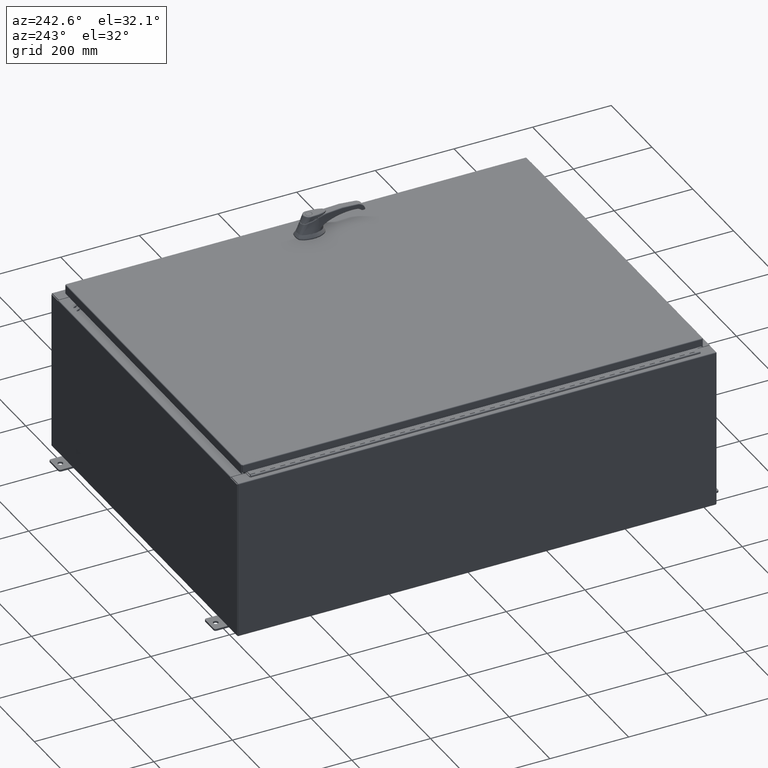
[diagram: clean part render]
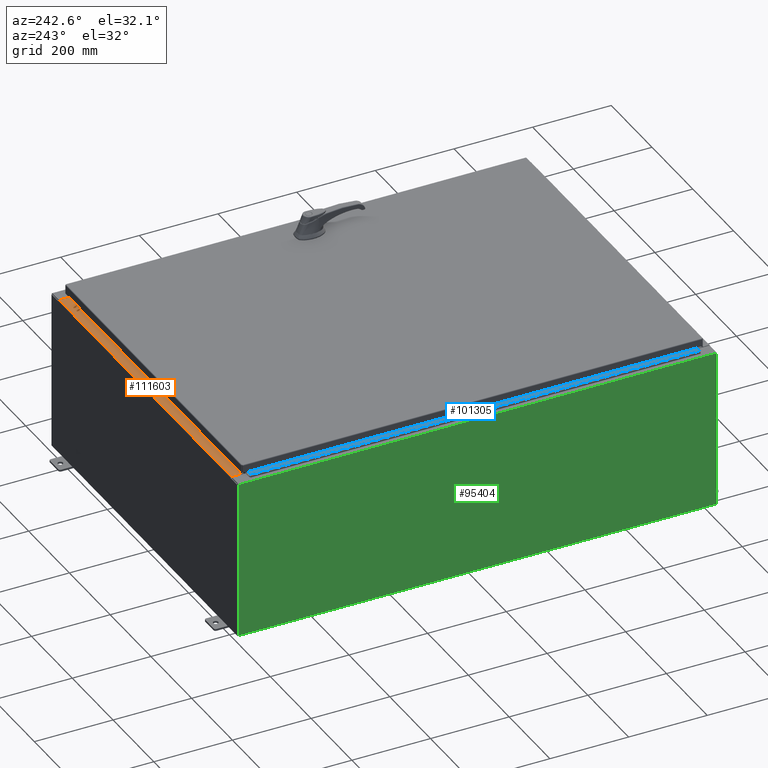
[diagram: same view with three faces highlighted in distinct colors, each labeled with its STEP entity id]
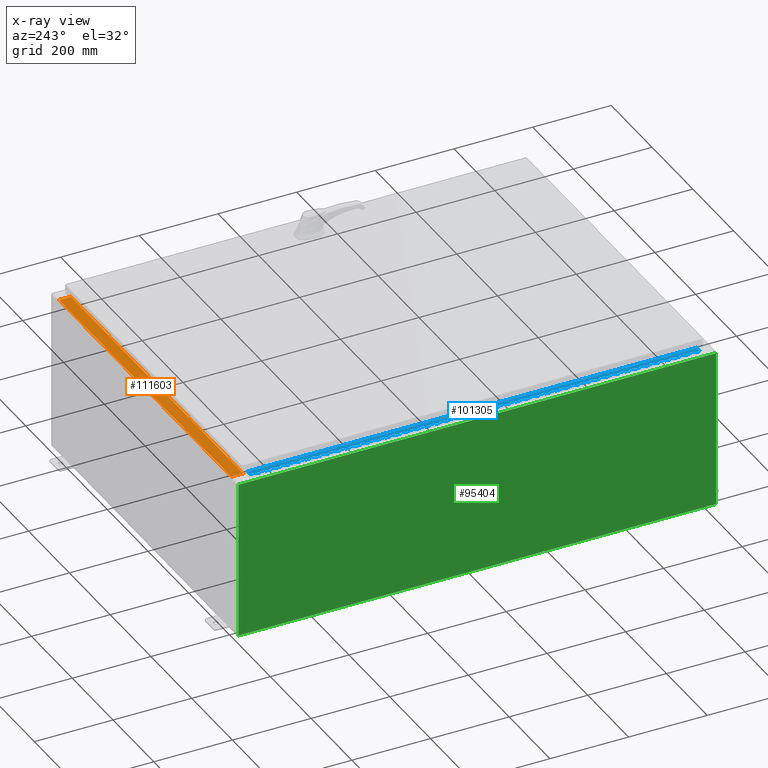
[diagram: x-ray of the same camera — body ghosted, the three highlighted faces saturated]
A machine part, auxiliary view with three faces highlighted in distinct colors.
The next image is the same camera in x-ray (body ghosted, the three faces saturated) — at least one of them is partly hidden behind the body in this view.
Their STEP definitions:

[orange] entity #111603 — the highlighted planar face has unit normal (0, 0, 1).
#1313 = VERTEX_POINT ( 'NONE', #87595 ) ;
#3247 = PLANE ( 'NONE',  #130551 ) ;
#7803 = ORIENTED_EDGE ( 'NONE', *, *, #67394, .T. ) ;
#14350 = VERTEX_POINT ( 'NONE', #70765 ) ;
#23816 = DIRECTION ( 'NONE',  ( 6.568047492761433500E-017, 3.566381192773190000E-015, 1.000000000000000000 ) ) ;
#24185 = VERTEX_POINT ( 'NONE', #100331 ) ;
#24794 = VERTEX_POINT ( 'NONE', #63802 ) ;
#28991 = DIRECTION ( 'NONE',  ( -0.0000000000000000000, 1.000000000000000000, -3.566381192773190000E-015 ) ) ;
#31180 = CARTESIAN_POINT ( 'NONE',  ( 16.63720000000000400, -1.287300000000000300, 8.000000000000003600 ) ) ;
#32770 = ORIENTED_EDGE ( 'NONE', *, *, #68452, .F. ) ;
#33668 = CARTESIAN_POINT ( 'NONE',  ( 5.250912337413644300E-016, 2.852545452309695200E-014, 8.000000000000001800 ) ) ;
#46267 = ORIENTED_EDGE ( 'NONE', *, *, #89168, .F. ) ;
#52454 = LINE ( 'NONE', #128988, #127857 ) ;
#63802 = CARTESIAN_POINT ( 'NONE',  ( 16.63720000000000400, -0.08770000000000102700, 8.000000000000000000 ) ) ;
#67394 = EDGE_CURVE ( 'NONE', #24794, #14350, #123268, .T. ) ;
#68452 = EDGE_CURVE ( 'NONE', #24794, #24185, #52454, .T. ) ;
#70765 = CARTESIAN_POINT ( 'NONE',  ( -16.63720000000000000, -0.08770000000000136000, 8.000000000000001800 ) ) ;
#73244 = FACE_OUTER_BOUND ( 'NONE', #92813, .T. ) ;
#73865 = VECTOR ( 'NONE', #28991, 39.37007874015748100 ) ;
#74792 = VECTOR ( 'NONE', #112835, 39.37007874015748100 ) ;
#77877 = DIRECTION ( 'NONE',  ( -0.0000000000000000000, -1.000000000000000000, 3.566381192773190000E-015 ) ) ;
#80829 = CARTESIAN_POINT ( 'NONE',  ( 5.308514113925181600E-016, -0.08770000000000136000, 8.000000000000001800 ) ) ;
#87595 = CARTESIAN_POINT ( 'NONE',  ( -16.63720000000000000, -1.287299999999999400, 8.000000000000007100 ) ) ;
#89168 = EDGE_CURVE ( 'NONE', #24185, #1313, #129331, .T. ) ;
#92813 = EDGE_LOOP ( 'NONE', ( #121607, #46267, #32770, #7803 ) ) ;
#95522 = DIRECTION ( 'NONE',  ( 0.0000000000000000000, -1.000000000000000000, 3.566381192773190000E-015 ) ) ;
#95923 = VECTOR ( 'NONE', #122089, 39.37007874015748100 ) ;
#100331 = CARTESIAN_POINT ( 'NONE',  ( 16.63720000000000000, -1.287300000000000300, 8.000000000000003600 ) ) ;
#110810 = LINE ( 'NONE', #131674, #73865 ) ;
#111603 = ADVANCED_FACE ( 'NONE', ( #73244 ), #3247, .T. ) ;
#112835 = DIRECTION ( 'NONE',  ( -1.000000000000000000, 0.0000000000000000000, 0.0000000000000000000 ) ) ;
#121607 = ORIENTED_EDGE ( 'NONE', *, *, #126487, .F. ) ;
#122089 = DIRECTION ( 'NONE',  ( -1.000000000000000000, -6.568047492761434800E-017, 6.568047492761457000E-017 ) ) ;
#123268 = LINE ( 'NONE', #80829, #95923 ) ;
#126487 = EDGE_CURVE ( 'NONE', #1313, #14350, #110810, .T. ) ;
#127857 = VECTOR ( 'NONE', #77877, 39.37007874015748100 ) ;
#128988 = CARTESIAN_POINT ( 'NONE',  ( 16.63720000000000000, -1.300299999999999800, 8.000000000000003600 ) ) ;
#129331 = LINE ( 'NONE', #31180, #74792 ) ;
#130551 = AXIS2_PLACEMENT_3D ( 'NONE', #33668, #23816, #95522 ) ;
#131674 = CARTESIAN_POINT ( 'NONE',  ( -16.63720000000000000, -0.07469999999999973900, 8.000000000000001800 ) ) ;

[blue] entity #101305 — the highlighted planar face has unit normal (-0, -0, 1).
#4 = ORIENTED_EDGE ( 'NONE', *, *, #34609, .F. ) ;
#68 = ORIENTED_EDGE ( 'NONE', *, *, #7512, .F. ) ;
#344 = CARTESIAN_POINT ( 'NONE',  ( -0.6869999999999982800, 0.5504999999999997700, -13.50000000000000000 ) ) ;
#394 = CARTESIAN_POINT ( 'NONE',  ( -0.6869999999999982800, 0.5504999999999997700, -44.49999999999999300 ) ) ;
#540 = CARTESIAN_POINT ( 'NONE',  ( -0.6869999999999978300, 0.6754999999999996600, -45.00000000000000000 ) ) ;
#631 = CARTESIAN_POINT ( 'NONE',  ( -0.6869999999999978300, 0.6754999999999996600, -12.49999999999999800 ) ) ;
#668 = LINE ( 'NONE', #120469, #106483 ) ;
#702 = VECTOR ( 'NONE', #39106, 39.37007874015748100 ) ;
#751 = ORIENTED_EDGE ( 'NONE', *, *, #109806, .F. ) ;
#838 = ORIENTED_EDGE ( 'NONE', *, *, #27374, .F. ) ;
#916 = DIRECTION ( 'NONE',  ( 0.0000000000000000000, 0.0000000000000000000, 1.000000000000000000 ) ) ;
#1051 = ORIENTED_EDGE ( 'NONE', *, *, #88612, .F. ) ;
#1089 = EDGE_CURVE ( 'NONE', #119205, #74271, #7974, .T. ) ;
#1161 = CARTESIAN_POINT ( 'NONE',  ( -0.6869999999999973900, 0.8004999999999995500, -5.000000000000000000 ) ) ;
#1191 = DIRECTION ( 'NONE',  ( 3.389037039080723100E-015, 1.000000000000000000, -0.0000000000000000000 ) ) ;
#1289 = CARTESIAN_POINT ( 'NONE',  ( -0.6869999999999982800, 0.5504999999999997700, -34.50000000000000000 ) ) ;
#1332 = ORIENTED_EDGE ( 'NONE', *, *, #106059, .T. ) ;
#1478 = LINE ( 'NONE', #123879, #4709 ) ;
#1482 = LINE ( 'NONE', #63749, #4713 ) ;
#1511 = EDGE_CURVE ( 'NONE', #105799, #55419, #51149, .T. ) ;
#1562 = CARTESIAN_POINT ( 'NONE',  ( -0.6869999999999982800, 0.5504999999999997700, -32.50000000000000000 ) ) ;
#1605 = LINE ( 'NONE', #111974, #107436 ) ;
#1621 = CARTESIAN_POINT ( 'NONE',  ( -0.6869999999999982800, 0.5504999999999997700, -43.50000000000000000 ) ) ;
#1734 = DIRECTION ( 'NONE',  ( -3.389037039080723100E-015, -1.000000000000000000, 0.0000000000000000000 ) ) ;
#1928 = CARTESIAN_POINT ( 'NONE',  ( -0.6869999999999973900, 0.8004999999999995500, -31.50000000000000400 ) ) ;
#2048 = LINE ( 'NONE', #14407, #83808 ) ;
#2065 = ORIENTED_EDGE ( 'NONE', *, *, #115125, .F. ) ;
#2113 = LINE ( 'NONE', #114490, #59813 ) ;
#2121 = VECTOR ( 'NONE', #126505, 39.37007874015748100 ) ;
#2194 = ORIENTED_EDGE ( 'NONE', *, *, #106957, .F. ) ;
#2222 = DIRECTION ( 'NONE',  ( 0.0000000000000000000, -0.0000000000000000000, -1.000000000000000000 ) ) ;
#2233 = VECTOR ( 'NONE', #78701, 39.37007874015748100 ) ;
#2413 = EDGE_CURVE ( 'NONE', #60705, #122955, #75088, .T. ) ;
#2938 = VERTEX_POINT ( 'NONE', #71791 ) ;
#2959 = DIRECTION ( 'NONE',  ( -3.389037039080723100E-015, -1.000000000000000000, 0.0000000000000000000 ) ) ;
#3026 = VERTEX_POINT ( 'NONE', #104505 ) ;
#3177 = CARTESIAN_POINT ( 'NONE',  ( -0.6869999999999998300, 0.07549999999999991400, -45.00000000000000000 ) ) ;
#3660 = ORIENTED_EDGE ( 'NONE', *, *, #65784, .F. ) ;
#3663 = EDGE_CURVE ( 'NONE', #131141, #101878, #39583, .T. ) ;
#3738 = LINE ( 'NONE', #61111, #99908 ) ;
#3789 = CARTESIAN_POINT ( 'NONE',  ( -0.6869999999999978300, 0.6754999999999996600, -45.00000000000000000 ) ) ;
#3828 = DIRECTION ( 'NONE',  ( 0.0000000000000000000, -0.0000000000000000000, -1.000000000000000000 ) ) ;
#3959 = CARTESIAN_POINT ( 'NONE',  ( -0.6869999999999973900, 0.8004999999999995500, -31.00000000000000000 ) ) ;
#4022 = CARTESIAN_POINT ( 'NONE',  ( -0.6869999999999973900, 0.8004999999999995500, -32.50000000000000000 ) ) ;
#4117 = ORIENTED_EDGE ( 'NONE', *, *, #38406, .F. ) ;
#4124 = CARTESIAN_POINT ( 'NONE',  ( -0.6869999999999973900, 0.8004999999999995500, -23.00000000000000000 ) ) ;
#4154 = CARTESIAN_POINT ( 'NONE',  ( -0.6869999999999982800, 0.5504999999999997700, -24.99999999999999600 ) ) ;
#4198 = CARTESIAN_POINT ( 'NONE',  ( -0.6869999999999973900, 0.8004999999999995500, -20.00000000000000000 ) ) ;
#4709 = VECTOR ( 'NONE', #31474, 39.37007874015748100 ) ;
#4713 = VECTOR ( 'NONE', #74056, 39.37007874015748100 ) ;
#4853 = DIRECTION ( 'NONE',  ( 3.389037039080723100E-015, 1.000000000000000000, -0.0000000000000000000 ) ) ;
#4863 = VERTEX_POINT ( 'NONE', #29008 ) ;
#4996 = EDGE_CURVE ( 'NONE', #20466, #90220, #109983, .T. ) ;
#5014 = DIRECTION ( 'NONE',  ( 0.0000000000000000000, -0.0000000000000000000, -1.000000000000000000 ) ) ;
#5162 = EDGE_CURVE ( 'NONE', #64897, #117365, #127588, .T. ) ;
#5263 = CARTESIAN_POINT ( 'NONE',  ( -0.6869999999999982800, 0.5504999999999997700, -33.50000000000000000 ) ) ;
#5365 = EDGE_CURVE ( 'NONE', #74262, #103150, #5684, .T. ) ;
#5456 = LINE ( 'NONE', #19581, #87228 ) ;
#5557 = VECTOR ( 'NONE', #129612, 39.37007874015748100 ) ;
#5684 = LINE ( 'NONE', #31262, #12075 ) ;
#6088 = CARTESIAN_POINT ( 'NONE',  ( -0.6869999999999982800, 0.5504999999999997700, -33.50000000000000000 ) ) ;
#6190 = VECTOR ( 'NONE', #86755, 39.37007874015748100 ) ;
#6194 = LINE ( 'NONE', #31005, #57434 ) ;
#6218 = VECTOR ( 'NONE', #17639, 39.37007874015748100 ) ;
#6285 = CARTESIAN_POINT ( 'NONE',  ( -0.6869999999999973900, 0.8004999999999995500, -9.500000000000000000 ) ) ;
#6329 = VERTEX_POINT ( 'NONE', #108611 ) ;
#6413 = VECTOR ( 'NONE', #55506, 39.37007874015748100 ) ;
#6418 = CARTESIAN_POINT ( 'NONE',  ( -0.6869999999999982800, 0.5504999999999997700, -5.500000000000000000 ) ) ;
#6586 = CARTESIAN_POINT ( 'NONE',  ( -0.6869999999999978300, 0.6754999999999996600, -45.00000000000000000 ) ) ;
#6618 = ORIENTED_EDGE ( 'NONE', *, *, #51516, .F. ) ;
#6660 = EDGE_CURVE ( 'NONE', #45955, #51525, #668, .T. ) ;
#6701 = CARTESIAN_POINT ( 'NONE',  ( -0.6869999999999982800, 0.5504999999999997700, -38.00000000000000000 ) ) ;
#6779 = VERTEX_POINT ( 'NONE', #102074 ) ;
#7001 = DIRECTION ( 'NONE',  ( 3.389037039080723100E-015, 1.000000000000000000, -0.0000000000000000000 ) ) ;
#7033 = CARTESIAN_POINT ( 'NONE',  ( -0.6869999999999973900, 0.8004999999999995500, -41.49999999999999300 ) ) ;
#7085 = CARTESIAN_POINT ( 'NONE',  ( -0.6869999999999973900, 0.8004999999999995500, -38.50000000000000000 ) ) ;
#7124 = DIRECTION ( 'NONE',  ( 0.0000000000000000000, -0.0000000000000000000, -1.000000000000000000 ) ) ;
#7253 = CARTESIAN_POINT ( 'NONE',  ( -0.6869999999999973900, 0.8004999999999995500, -2.000000000000000000 ) ) ;
#7480 = DIRECTION ( 'NONE',  ( 0.0000000000000000000, -0.0000000000000000000, -1.000000000000000000 ) ) ;
#7482 = LINE ( 'NONE', #114337, #31457 ) ;
#7512 = EDGE_CURVE ( 'NONE', #78016, #64897, #3738, .T. ) ;
#7657 = VECTOR ( 'NONE', #7480, 39.37007874015748100 ) ;
#7731 = ORIENTED_EDGE ( 'NONE', *, *, #69699, .F. ) ;
#7743 = VERTEX_POINT ( 'NONE', #127385 ) ;
#7824 = VECTOR ( 'NONE', #84361, 39.37007874015748100 ) ;
#7847 = CARTESIAN_POINT ( 'NONE',  ( -0.6869999999999978300, 0.6754999999999996600, -5.500000000000000000 ) ) ;
#7970 = VECTOR ( 'NONE', #1191, 39.37007874015748100 ) ;
#7974 = LINE ( 'NONE', #9333, #80094 ) ;
#8072 = VERTEX_POINT ( 'NONE', #70829 ) ;
#8097 = CARTESIAN_POINT ( 'NONE',  ( -0.6869999999999982800, 0.5504999999999997700, -42.50000000000000000 ) ) ;
#8113 = CARTESIAN_POINT ( 'NONE',  ( -0.6869999999999982800, 0.5504999999999997700, -17.00000000000000000 ) ) ;
#8174 = VECTOR ( 'NONE', #102760, 39.37007874015748100 ) ;
#8392 = VECTOR ( 'NONE', #110237, 39.37007874015748100 ) ;
#8424 = CARTESIAN_POINT ( 'NONE',  ( -0.6869999999999982800, 0.5504999999999997700, -39.49999999999999300 ) ) ;
#8512 = DIRECTION ( 'NONE',  ( 3.389037039080723100E-015, 1.000000000000000000, -0.0000000000000000000 ) ) ;
#8513 = CARTESIAN_POINT ( 'NONE',  ( -0.6869999999999978300, 0.6754999999999996600, -27.50000000000000000 ) ) ;
#8749 = VECTOR ( 'NONE', #29583, 39.37007874015748100 ) ;
#8852 = ORIENTED_EDGE ( 'NONE', *, *, #36558, .F. ) ;
#9104 = EDGE_CURVE ( 'NONE', #59989, #130804, #128776, .T. ) ;
#9113 = ORIENTED_EDGE ( 'NONE', *, *, #95643, .F. ) ;
#9125 = CARTESIAN_POINT ( 'NONE',  ( -0.6869999999999973900, 0.8004999999999995500, -43.50000000000000000 ) ) ;
#9333 = CARTESIAN_POINT ( 'NONE',  ( -0.6869999999999978300, 0.6754999999999996600, -45.00000000000000000 ) ) ;
#9396 = VECTOR ( 'NONE', #62890, 39.37007874015748100 ) ;
#9470 = VECTOR ( 'NONE', #78048, 39.37007874015748100 ) ;
#9546 = EDGE_CURVE ( 'NONE', #21630, #6779, #35602, .T. ) ;
#9612 = LINE ( 'NONE', #116530, #91379 ) ;
#9700 = VECTOR ( 'NONE', #10884, 39.37007874015748100 ) ;
#9749 = CARTESIAN_POINT ( 'NONE',  ( -0.6869999999999978300, 0.6754999999999996600, -29.50000000000000000 ) ) ;
#9935 = LINE ( 'NONE', #108574, #61239 ) ;
#10205 = LINE ( 'NONE', #44627, #61516 ) ;
#10291 = CARTESIAN_POINT ( 'NONE',  ( -0.6869999999999973900, 0.8004999999999995500, -33.50000000000000000 ) ) ;
#10452 = VERTEX_POINT ( 'NONE', #66482 ) ;
#10686 = VECTOR ( 'NONE', #31385, 39.37007874015748100 ) ;
#10845 = DIRECTION ( 'NONE',  ( -3.389037039080723100E-015, -1.000000000000000000, 0.0000000000000000000 ) ) ;
#10853 = EDGE_CURVE ( 'NONE', #130996, #88390, #62255, .T. ) ;
#10884 = DIRECTION ( 'NONE',  ( 0.0000000000000000000, -0.0000000000000000000, -1.000000000000000000 ) ) ;
#10960 = ORIENTED_EDGE ( 'NONE', *, *, #28512, .F. ) ;
#11092 = CARTESIAN_POINT ( 'NONE',  ( -0.6869999999999978300, 0.6754999999999996600, -45.00000000000000000 ) ) ;
#11099 = EDGE_CURVE ( 'NONE', #70517, #116579, #49386, .T. ) ;
#11144 = CARTESIAN_POINT ( 'NONE',  ( -0.6869999999999978300, 0.6754999999999996600, -11.99999999999999800 ) ) ;
#11157 = CARTESIAN_POINT ( 'NONE',  ( -0.6869999999999973900, 0.8004999999999995500, -30.50000000000000400 ) ) ;
#11358 = VERTEX_POINT ( 'NONE', #35679 ) ;
#11404 = CARTESIAN_POINT ( 'NONE',  ( -0.6869999999999982800, 0.5504999999999997700, -38.50000000000000000 ) ) ;
#11426 = CARTESIAN_POINT ( 'NONE',  ( -0.6869999999999982800, 0.5504999999999997700, -3.500000000000000000 ) ) ;
#11498 = CARTESIAN_POINT ( 'NONE',  ( -0.6869999999999978300, 0.6754999999999996600, -38.50000000000000000 ) ) ;
#11499 = EDGE_CURVE ( 'NONE', #118427, #20872, #74993, .T. ) ;
#11558 = DIRECTION ( 'NONE',  ( 0.0000000000000000000, -0.0000000000000000000, -1.000000000000000000 ) ) ;
#11631 = CARTESIAN_POINT ( 'NONE',  ( -0.6869999999999973900, 0.8004999999999995500, -33.00000000000000000 ) ) ;
#11635 = DIRECTION ( 'NONE',  ( -3.389037039080723100E-015, -1.000000000000000000, 0.0000000000000000000 ) ) ;
#11682 = VERTEX_POINT ( 'NONE', #70771 ) ;
#11688 = ORIENTED_EDGE ( 'NONE', *, *, #111185, .F. ) ;
#11763 = CARTESIAN_POINT ( 'NONE',  ( -0.6869999999999978300, 0.6754999999999996600, -45.00000000000000000 ) ) ;
#11824 = ORIENTED_EDGE ( 'NONE', *, *, #122760, .F. ) ;
#11890 = ORIENTED_EDGE ( 'NONE', *, *, #96415, .F. ) ;
#11925 = CARTESIAN_POINT ( 'NONE',  ( -0.6869999999999982800, 0.5504999999999997700, -34.00000000000000000 ) ) ;
#11973 = LINE ( 'NONE', #28613, #117817 ) ;
#12000 = VERTEX_POINT ( 'NONE', #43496 ) ;
#12075 = VECTOR ( 'NONE', #105236, 39.37007874015748100 ) ;
#12168 = ORIENTED_EDGE ( 'NONE', *, *, #38896, .T. ) ;
#12184 = VECTOR ( 'NONE', #59848, 39.37007874015748100 ) ;
#12207 = CARTESIAN_POINT ( 'NONE',  ( -0.6869999999999973900, 0.8004999999999995500, -12.99999999999999800 ) ) ;
#12330 = VECTOR ( 'NONE', #114659, 39.37007874015748100 ) ;
#12466 = VECTOR ( 'NONE', #108214, 39.37007874015748100 ) ;
#12506 = EDGE_CURVE ( 'NONE', #78871, #111379, #37945, .T. ) ;
#12687 = EDGE_CURVE ( 'NONE', #53209, #121999, #28270, .T. ) ;
#12714 = LINE ( 'NONE', #74184, #67240 ) ;
#12883 = AXIS2_PLACEMENT_3D ( 'NONE', #92770, #103118, #41698 ) ;
#13061 = DIRECTION ( 'NONE',  ( 0.0000000000000000000, -0.0000000000000000000, -1.000000000000000000 ) ) ;
#13240 = VERTEX_POINT ( 'NONE', #11426 ) ;
#13280 = ORIENTED_EDGE ( 'NONE', *, *, #81212, .F. ) ;
#13309 = ORIENTED_EDGE ( 'NONE', *, *, #64651, .F. ) ;
#13474 = DIRECTION ( 'NONE',  ( -3.389037039080723100E-015, -1.000000000000000000, 0.0000000000000000000 ) ) ;
#13534 = LINE ( 'NONE', #85092, #40817 ) ;
#13602 = ORIENTED_EDGE ( 'NONE', *, *, #27188, .F. ) ;
#13697 = LINE ( 'NONE', #73038, #37743 ) ;
#13862 = LINE ( 'NONE', #6418, #122965 ) ;
#13903 = DIRECTION ( 'NONE',  ( 3.389037039080723100E-015, 1.000000000000000000, -0.0000000000000000000 ) ) ;
#13987 = EDGE_CURVE ( 'NONE', #16133, #32425, #47351, .T. ) ;
#14100 = ORIENTED_EDGE ( 'NONE', *, *, #48354, .T. ) ;
#14168 = ORIENTED_EDGE ( 'NONE', *, *, #119315, .F. ) ;
#14366 = EDGE_CURVE ( 'NONE', #118427, #50654, #11973, .T. ) ;
#14396 = EDGE_CURVE ( 'NONE', #50417, #130996, #63285, .T. ) ;
#14407 = CARTESIAN_POINT ( 'NONE',  ( -0.6869999999999973900, 0.8004999999999995500, -42.00000000000000000 ) ) ;
#14512 = CARTESIAN_POINT ( 'NONE',  ( -0.6869999999999982800, 0.5504999999999997700, -6.000000000000000900 ) ) ;
#14544 = VERTEX_POINT ( 'NONE', #93096 ) ;
#14598 = CARTESIAN_POINT ( 'NONE',  ( -0.6869999999999982800, 0.5504999999999997700, -35.00000000000000000 ) ) ;
#14803 = CARTESIAN_POINT ( 'NONE',  ( -0.6869999999999982800, 0.5504999999999997700, -36.50000000000000000 ) ) ;
#14872 = CARTESIAN_POINT ( 'NONE',  ( -0.6869999999999978300, 0.6754999999999996600, -36.00000000000000000 ) ) ;
#14945 = EDGE_CURVE ( 'NONE', #105142, #101878, #82455, .T. ) ;
#14979 = EDGE_CURVE ( 'NONE', #47327, #26594, #106511, .T. ) ;
#15067 = VERTEX_POINT ( 'NONE', #113605 ) ;
#15079 = LINE ( 'NONE', #82106, #66366 ) ;
#15093 = CARTESIAN_POINT ( 'NONE',  ( -0.6869999999999973900, 0.8004999999999995500, -21.50000000000000400 ) ) ;
#15305 = CARTESIAN_POINT ( 'NONE',  ( -0.6869999999999982800, 0.5504999999999997700, -22.50000000000000000 ) ) ;
#15378 = DIRECTION ( 'NONE',  ( 3.389037039080723100E-015, 1.000000000000000000, -0.0000000000000000000 ) ) ;
#16126 = VECTOR ( 'NONE', #73345, 39.37007874015748100 ) ;
#16133 = VERTEX_POINT ( 'NONE', #48763 ) ;
#16271 = ORIENTED_EDGE ( 'NONE', *, *, #83324, .T. ) ;
#16426 = CARTESIAN_POINT ( 'NONE',  ( -0.6869999999999973900, 0.8004999999999995500, -37.00000000000000000 ) ) ;
#16775 = VECTOR ( 'NONE', #94537, 39.37007874015748100 ) ;
#16973 = CARTESIAN_POINT ( 'NONE',  ( -0.6869999999999978300, 0.6754999999999996600, -7.000000000000000000 ) ) ;
#17092 = EDGE_CURVE ( 'NONE', #104410, #131418, #18159, .T. ) ;
#17100 = DIRECTION ( 'NONE',  ( 3.389037039080723100E-015, 1.000000000000000000, -0.0000000000000000000 ) ) ;
#17240 = EDGE_CURVE ( 'NONE', #119483, #73997, #29326, .T. ) ;
#17311 = CARTESIAN_POINT ( 'NONE',  ( -0.6869999999999982800, 0.5504999999999997700, -5.500000000000000000 ) ) ;
#17382 = CARTESIAN_POINT ( 'NONE',  ( -0.6869999999999982800, 0.5504999999999997700, -19.50000000000000000 ) ) ;
#17537 = VERTEX_POINT ( 'NONE', #7847 ) ;
#17573 = CARTESIAN_POINT ( 'NONE',  ( -0.6869999999999978300, 0.6754999999999996600, -44.49999999999999300 ) ) ;
#17639 = DIRECTION ( 'NONE',  ( 3.389037039080723100E-015, 1.000000000000000000, -0.0000000000000000000 ) ) ;
#17778 = CARTESIAN_POINT ( 'NONE',  ( -0.6869999999999982800, 0.5504999999999997700, -42.50000000000000000 ) ) ;
#17787 = VERTEX_POINT ( 'NONE', #631 ) ;
#17879 = CARTESIAN_POINT ( 'NONE',  ( -0.6869999999999978300, 0.6754999999999996600, -6.000000000000000900 ) ) ;
#17904 = VERTEX_POINT ( 'NONE', #59612 ) ;
#18159 = LINE ( 'NONE', #75023, #124055 ) ;
#18299 = CARTESIAN_POINT ( 'NONE',  ( -0.6869999999999973900, 0.8004999999999995500, -28.00000000000000000 ) ) ;
#18339 = VECTOR ( 'NONE', #120378, 39.37007874015748100 ) ;
#18479 = LINE ( 'NONE', #11631, #69805 ) ;
#18558 = VECTOR ( 'NONE', #88884, 39.37007874015748100 ) ;
#18722 = CARTESIAN_POINT ( 'NONE',  ( -0.6869999999999978300, 0.6754999999999996600, -22.00000000000000000 ) ) ;
#18874 = CARTESIAN_POINT ( 'NONE',  ( -0.6869999999999982800, 0.5504999999999997700, -27.00000000000000000 ) ) ;
#18973 = VECTOR ( 'NONE', #109873, 39.37007874015748100 ) ;
#19048 = ORIENTED_EDGE ( 'NONE', *, *, #12506, .F. ) ;
#19056 = LINE ( 'NONE', #46023, #128157 ) ;
#19098 = VECTOR ( 'NONE', #116488, 39.37007874015748100 ) ;
#19320 = EDGE_CURVE ( 'NONE', #64350, #91321, #62681, .T. ) ;
#19356 = CARTESIAN_POINT ( 'NONE',  ( -0.6869999999999982800, 0.5504999999999997700, -4.500000000000000000 ) ) ;
#19409 = DIRECTION ( 'NONE',  ( -3.389037039080723100E-015, -1.000000000000000000, 0.0000000000000000000 ) ) ;
#19515 = DIRECTION ( 'NONE',  ( -3.389037039080723100E-015, -1.000000000000000000, 0.0000000000000000000 ) ) ;
#19577 = VECTOR ( 'NONE', #53060, 39.37007874015748100 ) ;
#19581 = CARTESIAN_POINT ( 'NONE',  ( -0.6869999999999982800, 0.5504999999999997700, -11.50000000000000000 ) ) ;
#19661 = ORIENTED_EDGE ( 'NONE', *, *, #103184, .T. ) ;
#19704 = VECTOR ( 'NONE', #36181, 39.37007874015748100 ) ;
#19720 = CARTESIAN_POINT ( 'NONE',  ( -0.6869999999999978300, 0.6754999999999996600, -14.99999999999999800 ) ) ;
#19909 = EDGE_CURVE ( 'NONE', #63782, #65739, #78634, .T. ) ;
#20226 = ORIENTED_EDGE ( 'NONE', *, *, #12687, .F. ) ;
#20255 = CARTESIAN_POINT ( 'NONE',  ( -0.6869999999999982800, 0.5504999999999997700, -26.50000000000000400 ) ) ;
#20412 = VECTOR ( 'NONE', #118514, 39.37007874015748100 ) ;
#20466 = VERTEX_POINT ( 'NONE', #28759 ) ;
#20551 = VERTEX_POINT ( 'NONE', #30090 ) ;
#20580 = CARTESIAN_POINT ( 'NONE',  ( -0.6869999999999982800, 0.5504999999999997700, -26.00000000000000000 ) ) ;
#20596 = DIRECTION ( 'NONE',  ( -3.389037039080723100E-015, -1.000000000000000000, 0.0000000000000000000 ) ) ;
#20610 = VERTEX_POINT ( 'NONE', #20255 ) ;
#20633 = VECTOR ( 'NONE', #17100, 39.37007874015748100 ) ;
#20638 = VECTOR ( 'NONE', #125985, 39.37007874015748100 ) ;
#20728 = CARTESIAN_POINT ( 'NONE',  ( -0.6869999999999973900, 0.8004999999999995500, -6.000000000000000900 ) ) ;
#20872 = VERTEX_POINT ( 'NONE', #8097 ) ;
#20996 = VECTOR ( 'NONE', #102131, 39.37007874015748100 ) ;
#21003 = CARTESIAN_POINT ( 'NONE',  ( -0.6869999999999978300, 0.6754999999999996600, -10.00000000000000000 ) ) ;
#21021 = LINE ( 'NONE', #66648, #99587 ) ;
#21064 = EDGE_CURVE ( 'NONE', #53535, #45175, #25503, .T. ) ;
#21080 = PLANE ( 'NONE',  #12883 ) ;
#21406 = EDGE_CURVE ( 'NONE', #15067, #31397, #54288, .T. ) ;
#21433 = VECTOR ( 'NONE', #94898, 39.37007874015748100 ) ;
#21583 = ORIENTED_EDGE ( 'NONE', *, *, #14396, .F. ) ;
#21630 = VERTEX_POINT ( 'NONE', #71413 ) ;
#21661 = ORIENTED_EDGE ( 'NONE', *, *, #115194, .F. ) ;
#21716 = ORIENTED_EDGE ( 'NONE', *, *, #76115, .F. ) ;
#21775 = LINE ( 'NONE', #119367, #18558 ) ;
#21824 = VERTEX_POINT ( 'NONE', #53831 ) ;
#21924 = DIRECTION ( 'NONE',  ( 3.389037039080723100E-015, 1.000000000000000000, -0.0000000000000000000 ) ) ;
#21933 = CARTESIAN_POINT ( 'NONE',  ( -0.6869999999999982800, 0.5504999999999997700, -43.50000000000000000 ) ) ;
#22037 = ORIENTED_EDGE ( 'NONE', *, *, #112074, .T. ) ;
#22052 = CARTESIAN_POINT ( 'NONE',  ( -0.6869999999999982800, 0.5504999999999997700, -40.50000000000000000 ) ) ;
#22256 = EDGE_CURVE ( 'NONE', #99895, #120356, #43532, .T. ) ;
#22490 = EDGE_CURVE ( 'NONE', #90508, #26594, #21021, .T. ) ;
#22719 = LINE ( 'NONE', #60652, #98071 ) ;
#22818 = EDGE_CURVE ( 'NONE', #119931, #33588, #107599, .T. ) ;
#22897 = DIRECTION ( 'NONE',  ( -3.389037039080723100E-015, -1.000000000000000000, 0.0000000000000000000 ) ) ;
#23464 = DIRECTION ( 'NONE',  ( 0.0000000000000000000, -0.0000000000000000000, -1.000000000000000000 ) ) ;
#23617 = VECTOR ( 'NONE', #65373, 39.37007874015748100 ) ;
#23735 = VERTEX_POINT ( 'NONE', #104482 ) ;
#23870 = VECTOR ( 'NONE', #74534, 39.37007874015748100 ) ;
#23893 = EDGE_CURVE ( 'NONE', #28013, #81662, #9612, .T. ) ;
#24043 = VERTEX_POINT ( 'NONE', #67642 ) ;
#24300 = ORIENTED_EDGE ( 'NONE', *, *, #60231, .F. ) ;
#24303 = LINE ( 'NONE', #38659, #72424 ) ;
#24307 = VECTOR ( 'NONE', #104737, 39.37007874015748100 ) ;
#24348 = DIRECTION ( 'NONE',  ( 0.0000000000000000000, 0.0000000000000000000, 1.000000000000000000 ) ) ;
#24615 = VERTEX_POINT ( 'NONE', #120363 ) ;
#24639 = ORIENTED_EDGE ( 'NONE', *, *, #41243, .T. ) ;
#24910 = EDGE_CURVE ( 'NONE', #24615, #106901, #110728, .T. ) ;
#25072 = VECTOR ( 'NONE', #122819, 39.37007874015748100 ) ;
#25141 = ORIENTED_EDGE ( 'NONE', *, *, #10853, .F. ) ;
#25149 = CARTESIAN_POINT ( 'NONE',  ( -0.6869999999999973900, 0.8004999999999995500, -44.00000000000000700 ) ) ;
#25275 = ORIENTED_EDGE ( 'NONE', *, *, #123949, .F. ) ;
#25352 = VERTEX_POINT ( 'NONE', #82049 ) ;
#25380 = DIRECTION ( 'NONE',  ( -3.389037039080723100E-015, -1.000000000000000000, 0.0000000000000000000 ) ) ;
#25423 = ORIENTED_EDGE ( 'NONE', *, *, #38553, .T. ) ;
#25503 = LINE ( 'NONE', #10291, #76844 ) ;
#25507 = DIRECTION ( 'NONE',  ( 3.369016658928398200E-015, 1.000000000000000000, 0.0000000000000000000 ) ) ;
#25603 = VERTEX_POINT ( 'NONE', #55046 ) ;
#25679 = LINE ( 'NONE', #1289, #128347 ) ;
#25710 = EDGE_CURVE ( 'NONE', #94077, #66327, #110593, .T. ) ;
#25792 = LINE ( 'NONE', #97856, #43443 ) ;
#25848 = EDGE_CURVE ( 'NONE', #133045, #87334, #46393, .T. ) ;
#25938 = ORIENTED_EDGE ( 'NONE', *, *, #49365, .T. ) ;
#25992 = EDGE_CURVE ( 'NONE', #23735, #24615, #118553, .T. ) ;
#26272 = VERTEX_POINT ( 'NONE', #92589 ) ;
#26345 = DIRECTION ( 'NONE',  ( 0.0000000000000000000, 0.0000000000000000000, 1.000000000000000000 ) ) ;
#26390 = EDGE_CURVE ( 'NONE', #40085, #37664, #123348, .T. ) ;
#26446 = DIRECTION ( 'NONE',  ( 0.0000000000000000000, -0.0000000000000000000, -1.000000000000000000 ) ) ;
#26562 = CARTESIAN_POINT ( 'NONE',  ( -0.6869999999999982800, 0.5504999999999997700, -19.00000000000000000 ) ) ;
#26588 = EDGE_CURVE ( 'NONE', #45175, #31692, #59097, .T. ) ;
#26594 = VERTEX_POINT ( 'NONE', #57549 ) ;
#26622 = LINE ( 'NONE', #7085, #129302 ) ;
#26625 = DIRECTION ( 'NONE',  ( -3.389037039080723100E-015, -1.000000000000000000, 0.0000000000000000000 ) ) ;
#26710 = ORIENTED_EDGE ( 'NONE', *, *, #72322, .F. ) ;
#26749 = CARTESIAN_POINT ( 'NONE',  ( -0.6869999999999973900, 0.8004999999999995500, -29.50000000000000000 ) ) ;
#26752 = DIRECTION ( 'NONE',  ( 0.0000000000000000000, -0.0000000000000000000, -1.000000000000000000 ) ) ;
#26759 = ORIENTED_EDGE ( 'NONE', *, *, #19909, .F. ) ;
#26770 = EDGE_CURVE ( 'NONE', #109145, #25352, #46274, .T. ) ;
#26777 = LINE ( 'NONE', #128673, #126240 ) ;
#26783 = ORIENTED_EDGE ( 'NONE', *, *, #60789, .T. ) ;
#26820 = EDGE_CURVE ( 'NONE', #129012, #46719, #97551, .T. ) ;
#26896 = CARTESIAN_POINT ( 'NONE',  ( -0.6869999999999978300, 0.6754999999999996600, -45.00000000000000000 ) ) ;
#26901 = ORIENTED_EDGE ( 'NONE', *, *, #131206, .T. ) ;
#26972 = VECTOR ( 'NONE', #83453, 39.37007874015748100 ) ;
#27031 = VERTEX_POINT ( 'NONE', #57221 ) ;
#27060 = VECTOR ( 'NONE', #48673, 39.37007874015748100 ) ;
#27075 = CARTESIAN_POINT ( 'NONE',  ( -0.6869999999999978300, 0.6754999999999996600, 0.0000000000000000000 ) ) ;
#27141 = CARTESIAN_POINT ( 'NONE',  ( -0.6869999999999978300, 0.6754999999999996600, -45.00000000000000000 ) ) ;
#27188 = EDGE_CURVE ( 'NONE', #107234, #121528, #99104, .T. ) ;
#27274 = VECTOR ( 'NONE', #80025, 39.37007874015748100 ) ;
#27374 = EDGE_CURVE ( 'NONE', #55419, #123823, #31681, .T. ) ;
#27490 = CARTESIAN_POINT ( 'NONE',  ( -0.6869999999999982800, 0.5504999999999997700, -2.500000000000000000 ) ) ;
#27511 = ORIENTED_EDGE ( 'NONE', *, *, #86651, .F. ) ;
#27572 = CARTESIAN_POINT ( 'NONE',  ( -0.6869999999999973900, 0.8004999999999995500, -11.00000000000000000 ) ) ;
#27591 = LINE ( 'NONE', #92295, #82136 ) ;
#27631 = DIRECTION ( 'NONE',  ( -3.389037039080723100E-015, -1.000000000000000000, 0.0000000000000000000 ) ) ;
#27648 = ORIENTED_EDGE ( 'NONE', *, *, #91793, .F. ) ;
#27747 = ORIENTED_EDGE ( 'NONE', *, *, #48633, .T. ) ;
#27809 = EDGE_CURVE ( 'NONE', #61808, #97085, #102219, .T. ) ;
#27895 = DIRECTION ( 'NONE',  ( -3.389037039080723100E-015, -1.000000000000000000, 0.0000000000000000000 ) ) ;
#28013 = VERTEX_POINT ( 'NONE', #28785 ) ;
#28270 = LINE ( 'NONE', #33439, #52323 ) ;
#28463 = VECTOR ( 'NONE', #111029, 39.37007874015748100 ) ;
#28512 = EDGE_CURVE ( 'NONE', #45955, #78871, #60407, .T. ) ;
#28588 = DIRECTION ( 'NONE',  ( 3.389037039080723100E-015, 1.000000000000000000, -0.0000000000000000000 ) ) ;
#28613 = CARTESIAN_POINT ( 'NONE',  ( -0.6869999999999978300, 0.6754999999999996600, -45.00000000000000000 ) ) ;
#28641 = DIRECTION ( 'NONE',  ( 0.0000000000000000000, 0.0000000000000000000, 1.000000000000000000 ) ) ;
#28759 = CARTESIAN_POINT ( 'NONE',  ( -0.6869999999999982800, 0.5504999999999997700, -24.50000000000000000 ) ) ;
#28785 = CARTESIAN_POINT ( 'NONE',  ( -0.6869999999999982800, 0.5504999999999997700, -40.00000000000000000 ) ) ;
#28856 = VECTOR ( 'NONE', #65542, 39.37007874015748100 ) ;
#28910 = ORIENTED_EDGE ( 'NONE', *, *, #45098, .F. ) ;
#29008 = CARTESIAN_POINT ( 'NONE',  ( -0.6869999999999978300, 0.6754999999999996600, -4.500000000000000000 ) ) ;
#29182 = EDGE_CURVE ( 'NONE', #17537, #41935, #97166, .T. ) ;
#29231 = CARTESIAN_POINT ( 'NONE',  ( -0.6869999999999978300, 0.6754999999999996600, -17.00000000000000000 ) ) ;
#29326 = LINE ( 'NONE', #118016, #83889 ) ;
#29452 = ORIENTED_EDGE ( 'NONE', *, *, #107698, .T. ) ;
#29583 = DIRECTION ( 'NONE',  ( 3.389037039080723100E-015, 1.000000000000000000, -0.0000000000000000000 ) ) ;
#29723 = LINE ( 'NONE', #123680, #53772 ) ;
#29832 = EDGE_CURVE ( 'NONE', #130338, #42998, #18479, .T. ) ;
#29894 = EDGE_CURVE ( 'NONE', #35915, #49478, #66572, .T. ) ;
#30086 = EDGE_CURVE ( 'NONE', #105557, #117860, #74570, .T. ) ;
#30088 = CARTESIAN_POINT ( 'NONE',  ( -0.6869999999999982800, 0.5504999999999997700, -7.000000000000000000 ) ) ;
#30090 = CARTESIAN_POINT ( 'NONE',  ( -0.6869999999999982800, 0.5504999999999997700, -31.00000000000000000 ) ) ;
#30212 = CARTESIAN_POINT ( 'NONE',  ( -0.6869999999999978300, 0.6754999999999996600, -9.000000000000000000 ) ) ;
#30230 = CARTESIAN_POINT ( 'NONE',  ( -0.6869999999999978300, 0.6754999999999996600, -16.50000000000000000 ) ) ;
#30271 = EDGE_CURVE ( 'NONE', #115843, #42933, #37652, .T. ) ;
#30311 = CARTESIAN_POINT ( 'NONE',  ( -0.6869999999999982800, 0.5504999999999997700, -28.50000000000000000 ) ) ;
#30452 = CARTESIAN_POINT ( 'NONE',  ( -0.6869999999999982800, 0.5504999999999997700, -18.50000000000000000 ) ) ;
#30484 = LINE ( 'NONE', #100629, #27274 ) ;
#30497 = VERTEX_POINT ( 'NONE', #40375 ) ;
#30612 = EDGE_CURVE ( 'NONE', #32970, #93233, #90515, .T. ) ;
#30618 = VECTOR ( 'NONE', #95407, 39.37007874015748100 ) ;
#30669 = VECTOR ( 'NONE', #63298, 39.37007874015748100 ) ;
#31005 = CARTESIAN_POINT ( 'NONE',  ( -0.6869999999999973900, 0.8004999999999995500, -21.00000000000000000 ) ) ;
#31165 = VECTOR ( 'NONE', #117713, 39.37007874015748100 ) ;
#31262 = CARTESIAN_POINT ( 'NONE',  ( -0.6869999999999982800, 0.5504999999999997700, -4.500000000000000000 ) ) ;
#31385 = DIRECTION ( 'NONE',  ( 0.0000000000000000000, 0.0000000000000000000, 1.000000000000000000 ) ) ;
#31397 = VERTEX_POINT ( 'NONE', #38865 ) ;
#31457 = VECTOR ( 'NONE', #52885, 39.37007874015748100 ) ;
#31474 = DIRECTION ( 'NONE',  ( -3.389037039080723100E-015, -1.000000000000000000, 0.0000000000000000000 ) ) ;
#31680 = CARTESIAN_POINT ( 'NONE',  ( -0.6869999999999978300, 0.6754999999999996600, -4.000000000000000000 ) ) ;
#31681 = LINE ( 'NONE', #80513, #28463 ) ;
#31692 = VERTEX_POINT ( 'NONE', #11925 ) ;
#31834 = EDGE_CURVE ( 'NONE', #90127, #62404, #61466, .T. ) ;
#32145 = ORIENTED_EDGE ( 'NONE', *, *, #45817, .F. ) ;
#32186 = CARTESIAN_POINT ( 'NONE',  ( -0.6869999999999982800, 0.5504999999999997700, -45.00000000000000000 ) ) ;
#32209 = CARTESIAN_POINT ( 'NONE',  ( -0.6869999999999978300, 0.6754999999999996600, -45.00000000000000000 ) ) ;
#32229 = CARTESIAN_POINT ( 'NONE',  ( -0.6869999999999982800, 0.5504999999999997700, -23.99999999999999600 ) ) ;
#32390 = CARTESIAN_POINT ( 'NONE',  ( -0.6869999999999982800, 0.5504999999999997700, -34.50000000000000000 ) ) ;
#32425 = VERTEX_POINT ( 'NONE', #22052 ) ;
#32492 = LINE ( 'NONE', #11092, #56553 ) ;
#32706 = DIRECTION ( 'NONE',  ( -3.389037039080723100E-015, -1.000000000000000000, 0.0000000000000000000 ) ) ;
#32727 = LINE ( 'NONE', #68194, #5557 ) ;
#32826 = LINE ( 'NONE', #71699, #108256 ) ;
#32890 = VERTEX_POINT ( 'NONE', #132232 ) ;
#32961 = DIRECTION ( 'NONE',  ( 0.0000000000000000000, -0.0000000000000000000, -1.000000000000000000 ) ) ;
#32964 = CARTESIAN_POINT ( 'NONE',  ( -0.6869999999999982800, 0.5504999999999997700, -31.50000000000000400 ) ) ;
#32970 = VERTEX_POINT ( 'NONE', #50638 ) ;
#32974 = ORIENTED_EDGE ( 'NONE', *, *, #114993, .F. ) ;
#32981 = VERTEX_POINT ( 'NONE', #102629 ) ;
#33101 = VECTOR ( 'NONE', #130880, 39.37007874015748100 ) ;
#33128 = CARTESIAN_POINT ( 'NONE',  ( -0.6869999999999973900, 0.8004999999999995500, -9.000000000000000000 ) ) ;
#33400 = LINE ( 'NONE', #48136, #6218 ) ;
#33439 = CARTESIAN_POINT ( 'NONE',  ( -0.6869999999999973900, 0.8004999999999995500, -2.999999999999999600 ) ) ;
#33491 = VECTOR ( 'NONE', #7124, 39.37007874015748100 ) ;
#33588 = VERTEX_POINT ( 'NONE', #102901 ) ;
#33736 = EDGE_CURVE ( 'NONE', #131418, #103369, #12714, .T. ) ;
#33872 = CARTESIAN_POINT ( 'NONE',  ( -0.6869999999999978300, 0.6754999999999996600, -38.00000000000000000 ) ) ;
#34015 = DIRECTION ( 'NONE',  ( 0.0000000000000000000, 0.0000000000000000000, 1.000000000000000000 ) ) ;
#34198 = VECTOR ( 'NONE', #91937, 39.37007874015748100 ) ;
#34230 = CARTESIAN_POINT ( 'NONE',  ( -0.6869999999999973900, 0.8004999999999995500, -37.50000000000000000 ) ) ;
#34390 = LINE ( 'NONE', #15093, #31165 ) ;
#34414 = VERTEX_POINT ( 'NONE', #69175 ) ;
#34436 = CARTESIAN_POINT ( 'NONE',  ( -0.6869999999999982800, 0.5504999999999997700, -9.500000000000000000 ) ) ;
#34500 = VECTOR ( 'NONE', #84679, 39.37007874015748100 ) ;
#34584 = VECTOR ( 'NONE', #89006, 39.37007874015748100 ) ;
#34609 = EDGE_CURVE ( 'NONE', #105944, #74271, #6194, .T. ) ;
#34645 = EDGE_CURVE ( 'NONE', #119483, #125159, #60678, .T. ) ;
#34903 = CARTESIAN_POINT ( 'NONE',  ( -0.6869999999999978300, 0.6754999999999996600, -45.00000000000000000 ) ) ;
#35422 = VECTOR ( 'NONE', #2222, 39.37007874015748100 ) ;
#35573 = CARTESIAN_POINT ( 'NONE',  ( -0.6869999999999978300, 0.6754999999999996600, -45.00000000000000000 ) ) ;
#35602 = LINE ( 'NONE', #120087, #8392 ) ;
#35679 = CARTESIAN_POINT ( 'NONE',  ( -0.6869999999999982800, 0.5504999999999997700, -14.49999999999999800 ) ) ;
#35735 = CARTESIAN_POINT ( 'NONE',  ( -0.6869999999999978300, 0.6754999999999996600, -35.00000000000000000 ) ) ;
#35915 = VERTEX_POINT ( 'NONE', #102895 ) ;
#36181 = DIRECTION ( 'NONE',  ( 0.0000000000000000000, 0.0000000000000000000, 1.000000000000000000 ) ) ;
#36558 = EDGE_CURVE ( 'NONE', #30497, #43244, #110099, .T. ) ;
#36608 = LINE ( 'NONE', #114027, #9396 ) ;
#36733 = ORIENTED_EDGE ( 'NONE', *, *, #11499, .F. ) ;
#36748 = VERTEX_POINT ( 'NONE', #103090 ) ;
#37064 = DIRECTION ( 'NONE',  ( -3.389037039080723100E-015, -1.000000000000000000, 0.0000000000000000000 ) ) ;
#37114 = LINE ( 'NONE', #12207, #30669 ) ;
#37344 = DIRECTION ( 'NONE',  ( 0.0000000000000000000, 0.0000000000000000000, 1.000000000000000000 ) ) ;
#37547 = LINE ( 'NONE', #45772, #116141 ) ;
#37652 = LINE ( 'NONE', #124941, #92172 ) ;
#37664 = VERTEX_POINT ( 'NONE', #33872 ) ;
#37743 = VECTOR ( 'NONE', #11635, 39.37007874015748100 ) ;
#37945 = LINE ( 'NONE', #82362, #116526 ) ;
#38100 = LINE ( 'NONE', #119953, #7657 ) ;
#38261 = LINE ( 'NONE', #53842, #7824 ) ;
#38312 = VECTOR ( 'NONE', #2959, 39.37007874015748100 ) ;
#38369 = ORIENTED_EDGE ( 'NONE', *, *, #14979, .T. ) ;
#38406 = EDGE_CURVE ( 'NONE', #71749, #31397, #69694, .T. ) ;
#38553 = EDGE_CURVE ( 'NONE', #129606, #43244, #32727, .T. ) ;
#38659 = CARTESIAN_POINT ( 'NONE',  ( -0.6869999999999978300, 0.6754999999999996600, -45.00000000000000000 ) ) ;
#38865 = CARTESIAN_POINT ( 'NONE',  ( -0.6869999999999978300, 0.6754999999999996600, -8.000000000000000000 ) ) ;
#38896 = EDGE_CURVE ( 'NONE', #4863, #91529, #61608, .T. ) ;
#38956 = CARTESIAN_POINT ( 'NONE',  ( -0.6869999999999982800, 0.5504999999999997700, -33.00000000000000000 ) ) ;
#38989 = LINE ( 'NONE', #105885, #2121 ) ;
#39106 = DIRECTION ( 'NONE',  ( 3.389037039080723100E-015, 1.000000000000000000, -0.0000000000000000000 ) ) ;
#39122 = ORIENTED_EDGE ( 'NONE', *, *, #21064, .F. ) ;
#39168 = ORIENTED_EDGE ( 'NONE', *, *, #23893, .F. ) ;
#39246 = VECTOR ( 'NONE', #82258, 39.37007874015748100 ) ;
#39486 = DIRECTION ( 'NONE',  ( 0.0000000000000000000, -0.0000000000000000000, -1.000000000000000000 ) ) ;
#39583 = LINE ( 'NONE', #42017, #12330 ) ;
#39826 = CARTESIAN_POINT ( 'NONE',  ( -0.6869999999999978300, 0.6754999999999996600, -44.00000000000000700 ) ) ;
#39911 = LINE ( 'NONE', #7253, #9470 ) ;
#39932 = VECTOR ( 'NONE', #50508, 39.37007874015748100 ) ;
#40085 = VERTEX_POINT ( 'NONE', #6701 ) ;
#40180 = LINE ( 'NONE', #17778, #67446 ) ;
#40192 = VECTOR ( 'NONE', #53547, 39.37007874015748100 ) ;
#40223 = LINE ( 'NONE', #57497, #91534 ) ;
#40273 = CARTESIAN_POINT ( 'NONE',  ( -0.6869999999999982800, 0.5504999999999997700, -35.50000000000000000 ) ) ;
#40349 = EDGE_CURVE ( 'NONE', #119895, #11358, #124155, .T. ) ;
#40375 = CARTESIAN_POINT ( 'NONE',  ( -0.6869999999999982800, 0.5504999999999997700, -44.00000000000000700 ) ) ;
#40425 = VERTEX_POINT ( 'NONE', #128941 ) ;
#40460 = EDGE_CURVE ( 'NONE', #130804, #60705, #114495, .T. ) ;
#40459 = VERTEX_POINT ( 'NONE', #88133 ) ;
#40489 = EDGE_CURVE ( 'NONE', #40459, #115843, #80788, .T. ) ;
#40533 = DIRECTION ( 'NONE',  ( 0.0000000000000000000, -0.0000000000000000000, -1.000000000000000000 ) ) ;
#40599 = ORIENTED_EDGE ( 'NONE', *, *, #2413, .F. ) ;
#40726 = CARTESIAN_POINT ( 'NONE',  ( -0.6869999999999982800, 0.5504999999999997700, -7.499999999999999100 ) ) ;
#40817 = VECTOR ( 'NONE', #126333, 39.37007874015748100 ) ;
#41102 = LINE ( 'NONE', #104014, #119687 ) ;
#41152 = VERTEX_POINT ( 'NONE', #18722 ) ;
#41243 = EDGE_CURVE ( 'NONE', #36748, #122955, #32492, .T. ) ;
#41376 = VECTOR ( 'NONE', #37064, 39.37007874015748100 ) ;
#41535 = CARTESIAN_POINT ( 'NONE',  ( -0.6869999999999978300, 0.6754999999999996600, -45.00000000000000000 ) ) ;
#41621 = ORIENTED_EDGE ( 'NONE', *, *, #17092, .F. ) ;
#41694 = VECTOR ( 'NONE', #93379, 39.37007874015748100 ) ;
#41698 = DIRECTION ( 'NONE',  ( 3.369016658928398200E-015, 1.000000000000000000, 0.0000000000000000000 ) ) ;
#41863 = DIRECTION ( 'NONE',  ( 0.0000000000000000000, 0.0000000000000000000, 1.000000000000000000 ) ) ;
#41935 = VERTEX_POINT ( 'NONE', #97074 ) ;
#41945 = ORIENTED_EDGE ( 'NONE', *, *, #95697, .T. ) ;
#41964 = LINE ( 'NONE', #1928, #120567 ) ;
#42017 = CARTESIAN_POINT ( 'NONE',  ( -0.6869999999999973900, 0.8004999999999995500, -19.00000000000000000 ) ) ;
#42071 = VERTEX_POINT ( 'NONE', #67502 ) ;
#42108 = LINE ( 'NONE', #71019, #123943 ) ;
#42418 = VECTOR ( 'NONE', #55613, 39.37007874015748100 ) ;
#42426 = EDGE_CURVE ( 'NONE', #87206, #90508, #9935, .T. ) ;
#42440 = VECTOR ( 'NONE', #101692, 39.37007874015748100 ) ;
#42679 = DIRECTION ( 'NONE',  ( -3.389037039080723100E-015, -1.000000000000000000, 0.0000000000000000000 ) ) ;
#42789 = LINE ( 'NONE', #50796, #118171 ) ;
#42933 = VERTEX_POINT ( 'NONE', #125506 ) ;
#42998 = VERTEX_POINT ( 'NONE', #128199 ) ;
#43070 = CARTESIAN_POINT ( 'NONE',  ( -0.6869999999999973900, 0.8004999999999995500, -25.50000000000000400 ) ) ;
#43244 = VERTEX_POINT ( 'NONE', #39826 ) ;
#43269 = CARTESIAN_POINT ( 'NONE',  ( -0.6869999999999973900, 0.8004999999999995500, -4.000000000000000000 ) ) ;
#43297 = ORIENTED_EDGE ( 'NONE', *, *, #34645, .T. ) ;
#43296 = CARTESIAN_POINT ( 'NONE',  ( -0.6869999999999973900, 0.8004999999999995500, -38.00000000000000000 ) ) ;
#43443 = VECTOR ( 'NONE', #66939, 39.37007874015748100 ) ;
#43496 = CARTESIAN_POINT ( 'NONE',  ( -0.6869999999999978300, 0.6754999999999996600, -28.99999999999999600 ) ) ;
#43532 = LINE ( 'NONE', #58253, #115697 ) ;
#43761 = ORIENTED_EDGE ( 'NONE', *, *, #82202, .T. ) ;
#43821 = VECTOR ( 'NONE', #117033, 39.37007874015748100 ) ;
#43940 = DIRECTION ( 'NONE',  ( 3.389037039080723100E-015, 1.000000000000000000, -0.0000000000000000000 ) ) ;
#43989 = CARTESIAN_POINT ( 'NONE',  ( -0.6869999999999982800, 0.5504999999999997700, -32.50000000000000000 ) ) ;
#44199 = DIRECTION ( 'NONE',  ( -3.389037039080723100E-015, -1.000000000000000000, 0.0000000000000000000 ) ) ;
#44333 = CARTESIAN_POINT ( 'NONE',  ( -0.6869999999999978300, 0.6754999999999996600, -20.00000000000000000 ) ) ;
#44460 = ORIENTED_EDGE ( 'NONE', *, *, #94314, .T. ) ;
#44588 = VERTEX_POINT ( 'NONE', #86910 ) ;
#44592 = CARTESIAN_POINT ( 'NONE',  ( -0.6869999999999982800, 0.5504999999999997700, -21.50000000000000400 ) ) ;
#44627 = CARTESIAN_POINT ( 'NONE',  ( -0.6869999999999982800, 0.5504999999999997700, -37.50000000000000000 ) ) ;
#45098 = EDGE_CURVE ( 'NONE', #11682, #14544, #48396, .T. ) ;
#45133 = DIRECTION ( 'NONE',  ( 3.389037039080723100E-015, 1.000000000000000000, -0.0000000000000000000 ) ) ;
#45175 = VERTEX_POINT ( 'NONE', #5263 ) ;
#45507 = CARTESIAN_POINT ( 'NONE',  ( -0.6869999999999978300, 0.6754999999999996600, -45.00000000000000000 ) ) ;
#45636 = EDGE_CURVE ( 'NONE', #21824, #85303, #42108, .T. ) ;
#45654 = CARTESIAN_POINT ( 'NONE',  ( -0.6869999999999978300, 0.6754999999999996600, -9.500000000000000000 ) ) ;
#45688 = LINE ( 'NONE', #94538, #69723 ) ;
#45772 = CARTESIAN_POINT ( 'NONE',  ( -0.6869999999999982800, 0.5504999999999997700, -17.50000000000000000 ) ) ;
#45800 = CARTESIAN_POINT ( 'NONE',  ( -0.6869999999999978300, 0.6754999999999996600, -24.50000000000000000 ) ) ;
#45817 = EDGE_CURVE ( 'NONE', #4863, #74262, #56466, .T. ) ;
#45955 = VERTEX_POINT ( 'NONE', #54323 ) ;
#46023 = CARTESIAN_POINT ( 'NONE',  ( -0.6869999999999973900, 0.8004999999999995500, -28.99999999999999600 ) ) ;
#46055 = DIRECTION ( 'NONE',  ( 3.389037039080723100E-015, 1.000000000000000000, -0.0000000000000000000 ) ) ;
#46074 = CARTESIAN_POINT ( 'NONE',  ( -0.6869999999999978300, 0.6754999999999996600, -45.00000000000000000 ) ) ;
#46085 = ORIENTED_EDGE ( 'NONE', *, *, #120805, .F. ) ;
#46123 = CARTESIAN_POINT ( 'NONE',  ( -0.6869999999999973900, 0.8004999999999995500, -17.00000000000000000 ) ) ;
#46274 = LINE ( 'NONE', #68163, #76750 ) ;
#46393 = LINE ( 'NONE', #34436, #19098 ) ;
#46436 = VECTOR ( 'NONE', #105987, 39.37007874015748100 ) ;
#46639 = DIRECTION ( 'NONE',  ( 3.389037039080723100E-015, 1.000000000000000000, -0.0000000000000000000 ) ) ;
#46719 = VERTEX_POINT ( 'NONE', #85404 ) ;
#46909 = LINE ( 'NONE', #99078, #74175 ) ;
#46962 = VERTEX_POINT ( 'NONE', #58439 ) ;
#47001 = LINE ( 'NONE', #46074, #19704 ) ;
#47195 = LINE ( 'NONE', #21933, #74453 ) ;
#47256 = VECTOR ( 'NONE', #24348, 39.37007874015748100 ) ;
#47271 = LINE ( 'NONE', #33128, #16775 ) ;
#47311 = CARTESIAN_POINT ( 'NONE',  ( -0.6869999999999982800, 0.5504999999999997700, -22.50000000000000000 ) ) ;
#47327 = VERTEX_POINT ( 'NONE', #45800 ) ;
#47351 = LINE ( 'NONE', #104512, #119500 ) ;
#47585 = DIRECTION ( 'NONE',  ( -3.389037039080723100E-015, -1.000000000000000000, 0.0000000000000000000 ) ) ;
#47588 = CARTESIAN_POINT ( 'NONE',  ( -0.6869999999999973900, 0.8004999999999995500, -22.00000000000000000 ) ) ;
#47733 = EDGE_CURVE ( 'NONE', #27031, #91529, #122036, .T. ) ;
#47762 = VECTOR ( 'NONE', #15378, 39.37007874015748100 ) ;
#47903 = LINE ( 'NONE', #3177, #20638 ) ;
#47955 = ORIENTED_EDGE ( 'NONE', *, *, #49217, .F. ) ;
#47958 = VERTEX_POINT ( 'NONE', #27490 ) ;
#48136 = CARTESIAN_POINT ( 'NONE',  ( -0.6869999999999973900, 0.8004999999999995500, -32.00000000000000000 ) ) ;
#48137 = LINE ( 'NONE', #11404, #41694 ) ;
#48354 = EDGE_CURVE ( 'NONE', #71844, #26272, #56092, .T. ) ;
#48396 = LINE ( 'NONE', #32964, #24307 ) ;
#48518 = EDGE_CURVE ( 'NONE', #40425, #55900, #67334, .T. ) ;
#48633 = EDGE_CURVE ( 'NONE', #17787, #130586, #115459, .T. ) ;
#48673 = DIRECTION ( 'NONE',  ( 0.0000000000000000000, 0.0000000000000000000, 1.000000000000000000 ) ) ;
#48698 = LINE ( 'NONE', #84643, #21433 ) ;
#48763 = CARTESIAN_POINT ( 'NONE',  ( -0.6869999999999978300, 0.6754999999999996600, -40.50000000000000000 ) ) ;
#48767 = EDGE_CURVE ( 'NONE', #25603, #69971, #96110, .T. ) ;
#48899 = EDGE_CURVE ( 'NONE', #66928, #121999, #62452, .T. ) ;
#48907 = ORIENTED_EDGE ( 'NONE', *, *, #93863, .T. ) ;
#49217 = EDGE_CURVE ( 'NONE', #6329, #108627, #118535, .T. ) ;
#49245 = ORIENTED_EDGE ( 'NONE', *, *, #3663, .F. ) ;
#49365 = EDGE_CURVE ( 'NONE', #80537, #91360, #91257, .T. ) ;
#49386 = LINE ( 'NONE', #73411, #127996 ) ;
#49478 = VERTEX_POINT ( 'NONE', #27075 ) ;
#49763 = EDGE_CURVE ( 'NONE', #32981, #129591, #38261, .T. ) ;
#50317 = LINE ( 'NONE', #41535, #132134 ) ;
#50417 = VERTEX_POINT ( 'NONE', #113808 ) ;
#50508 = DIRECTION ( 'NONE',  ( 0.0000000000000000000, -0.0000000000000000000, -1.000000000000000000 ) ) ;
#50633 = DIRECTION ( 'NONE',  ( -3.389037039080723100E-015, -1.000000000000000000, 0.0000000000000000000 ) ) ;
#50638 = CARTESIAN_POINT ( 'NONE',  ( -0.6869999999999982800, 0.5504999999999997700, -29.99999999999999600 ) ) ;
#50654 = VERTEX_POINT ( 'NONE', #76083 ) ;
#50796 = CARTESIAN_POINT ( 'NONE',  ( -0.6869999999999973900, 0.8004999999999995500, -8.500000000000000000 ) ) ;
#50891 = LINE ( 'NONE', #4022, #23617 ) ;
#50930 = VECTOR ( 'NONE', #50633, 39.37007874015748100 ) ;
#51055 = CARTESIAN_POINT ( 'NONE',  ( -0.6870000000000022800, -0.6245000000000003900, -45.00000000000000000 ) ) ;
#51149 = LINE ( 'NONE', #64235, #23870 ) ;
#51151 = LINE ( 'NONE', #16426, #102494 ) ;
#51242 = VECTOR ( 'NONE', #91836, 39.37007874015748100 ) ;
#51501 = DIRECTION ( 'NONE',  ( 0.0000000000000000000, 0.0000000000000000000, 1.000000000000000000 ) ) ;
#51516 = EDGE_CURVE ( 'NONE', #53764, #87206, #121379, .T. ) ;
#51525 = VERTEX_POINT ( 'NONE', #65021 ) ;
#51749 = CARTESIAN_POINT ( 'NONE',  ( -0.6869999999999973900, 0.8004999999999995500, -24.50000000000000000 ) ) ;
#51783 = VERTEX_POINT ( 'NONE', #60444 ) ;
#51822 = CARTESIAN_POINT ( 'NONE',  ( -0.6869999999999982800, 0.5504999999999997700, -28.00000000000000000 ) ) ;
#51853 = DIRECTION ( 'NONE',  ( 0.0000000000000000000, -0.0000000000000000000, -1.000000000000000000 ) ) ;
#51960 = VECTOR ( 'NONE', #110532, 39.37007874015748100 ) ;
#52323 = VECTOR ( 'NONE', #4853, 39.37007874015748100 ) ;
#52335 = LINE ( 'NONE', #51055, #25072 ) ;
#52545 = VECTOR ( 'NONE', #39486, 39.37007874015748100 ) ;
#52885 = DIRECTION ( 'NONE',  ( 0.0000000000000000000, 0.0000000000000000000, 1.000000000000000000 ) ) ;
#52989 = ORIENTED_EDGE ( 'NONE', *, *, #60969, .F. ) ;
#53060 = DIRECTION ( 'NONE',  ( 0.0000000000000000000, 0.0000000000000000000, 1.000000000000000000 ) ) ;
#53085 = CARTESIAN_POINT ( 'NONE',  ( -0.6869999999999978300, 0.6754999999999996600, -14.00000000000000000 ) ) ;
#53209 = VERTEX_POINT ( 'NONE', #91426 ) ;
#53238 = EDGE_CURVE ( 'NONE', #8072, #131141, #117893, .T. ) ;
#53274 = EDGE_CURVE ( 'NONE', #31692, #63766, #32826, .T. ) ;
#53304 = VECTOR ( 'NONE', #127802, 39.37007874015748100 ) ;
#53345 = VERTEX_POINT ( 'NONE', #73015 ) ;
#53354 = VERTEX_POINT ( 'NONE', #32186 ) ;
#53431 = LINE ( 'NONE', #43989, #77534 ) ;
#53535 = VERTEX_POINT ( 'NONE', #127224 ) ;
#53547 = DIRECTION ( 'NONE',  ( 3.389037039080723100E-015, 1.000000000000000000, -0.0000000000000000000 ) ) ;
#53764 = VERTEX_POINT ( 'NONE', #122217 ) ;
#53772 = VECTOR ( 'NONE', #62245, 39.37007874015748100 ) ;
#53831 = CARTESIAN_POINT ( 'NONE',  ( -0.6869999999999982800, 0.5504999999999997700, -15.50000000000000000 ) ) ;
#53842 = CARTESIAN_POINT ( 'NONE',  ( -0.6869999999999978300, 0.6754999999999996600, -45.00000000000000000 ) ) ;
#53871 = VECTOR ( 'NONE', #118657, 39.37007874015748100 ) ;
#53910 = ORIENTED_EDGE ( 'NONE', *, *, #87579, .F. ) ;
#53940 = ORIENTED_EDGE ( 'NONE', *, *, #92646, .T. ) ;
#54048 = LINE ( 'NONE', #98333, #132711 ) ;
#54102 = CARTESIAN_POINT ( 'NONE',  ( -0.6869999999999978300, 0.6754999999999996600, -45.00000000000000000 ) ) ;
#54156 = LINE ( 'NONE', #104184, #126359 ) ;
#54288 = LINE ( 'NONE', #110108, #27060 ) ;
#54323 = CARTESIAN_POINT ( 'NONE',  ( -0.6869999999999978300, 0.6754999999999996600, -1.499999999999999800 ) ) ;
#54417 = CARTESIAN_POINT ( 'NONE',  ( -0.6869999999999973900, 0.8004999999999995500, -19.50000000000000000 ) ) ;
#54434 = DIRECTION ( 'NONE',  ( -3.389037039080723100E-015, -1.000000000000000000, 0.0000000000000000000 ) ) ;
#54610 = ORIENTED_EDGE ( 'NONE', *, *, #128170, .F. ) ;
#54824 = LINE ( 'NONE', #92723, #130255 ) ;
#54850 = CARTESIAN_POINT ( 'NONE',  ( -0.6869999999999982800, 0.5504999999999997700, -14.49999999999999800 ) ) ;
#54885 = DIRECTION ( 'NONE',  ( 0.0000000000000000000, -0.0000000000000000000, -1.000000000000000000 ) ) ;
#54973 = DIRECTION ( 'NONE',  ( 3.389037039080723100E-015, 1.000000000000000000, -0.0000000000000000000 ) ) ;
#55046 = CARTESIAN_POINT ( 'NONE',  ( -0.6869999999999978300, 0.6754999999999996600, -30.50000000000000400 ) ) ;
#55217 = EDGE_CURVE ( 'NONE', #40425, #62363, #125045, .T. ) ;
#55316 = DIRECTION ( 'NONE',  ( 0.0000000000000000000, 0.0000000000000000000, 1.000000000000000000 ) ) ;
#55419 = VERTEX_POINT ( 'NONE', #14803 ) ;
#55506 = DIRECTION ( 'NONE',  ( 0.0000000000000000000, 0.0000000000000000000, 1.000000000000000000 ) ) ;
#55613 = DIRECTION ( 'NONE',  ( 3.389037039080723100E-015, 1.000000000000000000, -0.0000000000000000000 ) ) ;
#55850 = VECTOR ( 'NONE', #77768, 39.37007874015748100 ) ;
#55895 = LINE ( 'NONE', #54850, #79983 ) ;
#55900 = VERTEX_POINT ( 'NONE', #78710 ) ;
#55921 = CARTESIAN_POINT ( 'NONE',  ( -0.6869999999999978300, 0.6754999999999996600, -24.99999999999999600 ) ) ;
#55996 = EDGE_CURVE ( 'NONE', #100613, #46719, #30484, .T. ) ;
#56092 = LINE ( 'NONE', #26896, #131535 ) ;
#56103 = DIRECTION ( 'NONE',  ( 0.0000000000000000000, 0.0000000000000000000, 1.000000000000000000 ) ) ;
#56113 = VERTEX_POINT ( 'NONE', #81806 ) ;
#56195 = EDGE_CURVE ( 'NONE', #63000, #123313, #48137, .T. ) ;
#56241 = DIRECTION ( 'NONE',  ( -3.389037039080723100E-015, -1.000000000000000000, 0.0000000000000000000 ) ) ;
#56360 = DIRECTION ( 'NONE',  ( 3.389037039080723100E-015, 1.000000000000000000, -0.0000000000000000000 ) ) ;
#56466 = LINE ( 'NONE', #114467, #80566 ) ;
#56553 = VECTOR ( 'NONE', #82790, 39.37007874015748100 ) ;
#56774 = CARTESIAN_POINT ( 'NONE',  ( -0.6869999999999978300, 0.6754999999999996600, -26.00000000000000000 ) ) ;
#56801 = EDGE_CURVE ( 'NONE', #3026, #84305, #112217, .T. ) ;
#57221 = CARTESIAN_POINT ( 'NONE',  ( -0.6869999999999982800, 0.5504999999999997700, -4.000000000000000000 ) ) ;
#57303 = ORIENTED_EDGE ( 'NONE', *, *, #64289, .F. ) ;
#57434 = VECTOR ( 'NONE', #102772, 39.37007874015748100 ) ;
#57497 = CARTESIAN_POINT ( 'NONE',  ( -0.6869999999999978300, 0.6754999999999996600, -45.00000000000000000 ) ) ;
#57549 = CARTESIAN_POINT ( 'NONE',  ( -0.6869999999999978300, 0.6754999999999996600, -23.99999999999999600 ) ) ;
#57577 = DIRECTION ( 'NONE',  ( 0.0000000000000000000, -0.0000000000000000000, -1.000000000000000000 ) ) ;
#57776 = EDGE_CURVE ( 'NONE', #109780, #130586, #126471, .T. ) ;
#58077 = ORIENTED_EDGE ( 'NONE', *, *, #40489, .F. ) ;
#58253 = CARTESIAN_POINT ( 'NONE',  ( -0.6869999999999978300, 0.6754999999999996600, -45.00000000000000000 ) ) ;
#58279 = DIRECTION ( 'NONE',  ( -3.389037039080723100E-015, -1.000000000000000000, 0.0000000000000000000 ) ) ;
#58439 = CARTESIAN_POINT ( 'NONE',  ( -0.6869999999999982800, 0.5504999999999997700, -14.99999999999999800 ) ) ;
#58566 = ORIENTED_EDGE ( 'NONE', *, *, #14366, .T. ) ;
#58632 = ORIENTED_EDGE ( 'NONE', *, *, #56801, .T. ) ;
#58732 = EDGE_CURVE ( 'NONE', #47958, #53209, #38100, .T. ) ;
#58789 = ORIENTED_EDGE ( 'NONE', *, *, #30612, .F. ) ;
#59031 = DIRECTION ( 'NONE',  ( 0.0000000000000000000, 0.0000000000000000000, 1.000000000000000000 ) ) ;
#59056 = LINE ( 'NONE', #6285, #116829 ) ;
#59097 = LINE ( 'NONE', #6088, #55850 ) ;
#59204 = VECTOR ( 'NONE', #85070, 39.37007874015748100 ) ;
#59462 = ORIENTED_EDGE ( 'NONE', *, *, #97052, .F. ) ;
#59612 = CARTESIAN_POINT ( 'NONE',  ( -0.6869999999999998300, 0.07549999999999991400, -45.00000000000000000 ) ) ;
#59813 = VECTOR ( 'NONE', #41863, 39.37007874015748100 ) ;
#59848 = DIRECTION ( 'NONE',  ( 0.0000000000000000000, 0.0000000000000000000, 1.000000000000000000 ) ) ;
#59989 = VERTEX_POINT ( 'NONE', #92091 ) ;
#60002 = ORIENTED_EDGE ( 'NONE', *, *, #71696, .F. ) ;
#60231 = EDGE_CURVE ( 'NONE', #81953, #119450, #65105, .T. ) ;
#60386 = DIRECTION ( 'NONE',  ( 0.0000000000000000000, 0.0000000000000000000, 1.000000000000000000 ) ) ;
#60407 = LINE ( 'NONE', #69449, #33101 ) ;
#60444 = CARTESIAN_POINT ( 'NONE',  ( -0.6869999999999982800, 0.5504999999999997700, -22.00000000000000000 ) ) ;
#60447 = DIRECTION ( 'NONE',  ( 0.0000000000000000000, 0.0000000000000000000, 1.000000000000000000 ) ) ;
#60652 = CARTESIAN_POINT ( 'NONE',  ( -0.6869999999999973900, 0.8004999999999995500, -12.49999999999999800 ) ) ;
#60678 = LINE ( 'NONE', #11763, #26972 ) ;
#60705 = VERTEX_POINT ( 'NONE', #20580 ) ;
#60748 = CARTESIAN_POINT ( 'NONE',  ( -0.6869999999999982800, 0.5504999999999997700, -36.00000000000000000 ) ) ;
#60789 = EDGE_CURVE ( 'NONE', #109145, #103369, #29723, .T. ) ;
#60969 = EDGE_CURVE ( 'NONE', #20551, #84305, #68205, .T. ) ;
#61016 = VERTEX_POINT ( 'NONE', #106566 ) ;
#61111 = CARTESIAN_POINT ( 'NONE',  ( -0.6869999999999973900, 0.8004999999999995500, -22.50000000000000000 ) ) ;
#61239 = VECTOR ( 'NONE', #118865, 39.37007874015748100 ) ;
#61313 = LINE ( 'NONE', #122386, #112665 ) ;
#61466 = LINE ( 'NONE', #126205, #88733 ) ;
#61516 = VECTOR ( 'NONE', #54885, 39.37007874015748100 ) ;
#61521 = LINE ( 'NONE', #101818, #34198 ) ;
#61608 = LINE ( 'NONE', #32209, #88878 ) ;
#61686 = EDGE_CURVE ( 'NONE', #32890, #49478, #101789, .T. ) ;
#61808 = VERTEX_POINT ( 'NONE', #128368 ) ;
#61928 = DIRECTION ( 'NONE',  ( -3.389037039080723100E-015, -1.000000000000000000, 0.0000000000000000000 ) ) ;
#62016 = CARTESIAN_POINT ( 'NONE',  ( -0.6869999999999982800, 0.5504999999999997700, -13.50000000000000000 ) ) ;
#62212 = CARTESIAN_POINT ( 'NONE',  ( -0.6869999999999982800, 0.5504999999999997700, -8.500000000000000000 ) ) ;
#62245 = DIRECTION ( 'NONE',  ( 0.0000000000000000000, 0.0000000000000000000, 1.000000000000000000 ) ) ;
#62255 = LINE ( 'NONE', #131315, #113598 ) ;
#62337 = ORIENTED_EDGE ( 'NONE', *, *, #121621, .F. ) ;
#62363 = VERTEX_POINT ( 'NONE', #95470 ) ;
#62404 = VERTEX_POINT ( 'NONE', #99820 ) ;
#62435 = ORIENTED_EDGE ( 'NONE', *, *, #98444, .F. ) ;
#62452 = LINE ( 'NONE', #54102, #59204 ) ;
#62519 = CARTESIAN_POINT ( 'NONE',  ( -0.6869999999999982800, 0.5504999999999997700, -12.49999999999999800 ) ) ;
#62556 = CARTESIAN_POINT ( 'NONE',  ( -0.6869999999999973900, 0.8004999999999995500, -24.99999999999999600 ) ) ;
#62681 = LINE ( 'NONE', #20728, #8174 ) ;
#62800 = ORIENTED_EDGE ( 'NONE', *, *, #88103, .F. ) ;
#62890 = DIRECTION ( 'NONE',  ( 0.0000000000000000000, 0.0000000000000000000, 1.000000000000000000 ) ) ;
#63000 = VERTEX_POINT ( 'NONE', #132403 ) ;
#63016 = ORIENTED_EDGE ( 'NONE', *, *, #19320, .F. ) ;
#63036 = CARTESIAN_POINT ( 'NONE',  ( -0.6869999999999973900, 0.8004999999999995500, -35.00000000000000000 ) ) ;
#63261 = EDGE_CURVE ( 'NONE', #103120, #131475, #47001, .T. ) ;
#63285 = LINE ( 'NONE', #40273, #42440 ) ;
#63297 = LINE ( 'NONE', #1161, #114649 ) ;
#63298 = DIRECTION ( 'NONE',  ( 3.389037039080723100E-015, 1.000000000000000000, -0.0000000000000000000 ) ) ;
#63311 = DIRECTION ( 'NONE',  ( -3.389037039080723100E-015, -1.000000000000000000, 0.0000000000000000000 ) ) ;
#63343 = EDGE_CURVE ( 'NONE', #116579, #105944, #98285, .T. ) ;
#63457 = ORIENTED_EDGE ( 'NONE', *, *, #98365, .F. ) ;
#63475 = VERTEX_POINT ( 'NONE', #100686 ) ;
#63496 = CARTESIAN_POINT ( 'NONE',  ( -0.6869999999999982800, 0.5504999999999997700, -24.50000000000000000 ) ) ;
#63511 = DIRECTION ( 'NONE',  ( 0.0000000000000000000, -0.0000000000000000000, -1.000000000000000000 ) ) ;
#63749 = CARTESIAN_POINT ( 'NONE',  ( -0.6869999999999973900, 0.8004999999999995500, -28.50000000000000000 ) ) ;
#63766 = VERTEX_POINT ( 'NONE', #107813 ) ;
#63782 = VERTEX_POINT ( 'NONE', #87207 ) ;
#63893 = CARTESIAN_POINT ( 'NONE',  ( -0.6869999999999978300, 0.6754999999999996600, -16.00000000000000000 ) ) ;
#64080 = CARTESIAN_POINT ( 'NONE',  ( -0.6869999999999982800, 0.5504999999999997700, -29.50000000000000000 ) ) ;
#64094 = VECTOR ( 'NONE', #44199, 39.37007874015748100 ) ;
#64125 = DIRECTION ( 'NONE',  ( 0.0000000000000000000, 0.0000000000000000000, 1.000000000000000000 ) ) ;
#64156 = EDGE_CURVE ( 'NONE', #124626, #99125, #101400, .T. ) ;
#64235 = CARTESIAN_POINT ( 'NONE',  ( -0.6869999999999973900, 0.8004999999999995500, -36.50000000000000000 ) ) ;
#64255 = VECTOR ( 'NONE', #119771, 39.37007874015748100 ) ;
#64289 = EDGE_CURVE ( 'NONE', #66402, #115999, #67698, .T. ) ;
#64350 = VERTEX_POINT ( 'NONE', #14512 ) ;
#64640 = CARTESIAN_POINT ( 'NONE',  ( -0.6869999999999982800, 0.5504999999999997700, -21.50000000000000400 ) ) ;
#64651 = EDGE_CURVE ( 'NONE', #3026, #11682, #41964, .T. ) ;
#64653 = LINE ( 'NONE', #77578, #85478 ) ;
#64897 = VERTEX_POINT ( 'NONE', #15305 ) ;
#65021 = CARTESIAN_POINT ( 'NONE',  ( -0.6869999999999978300, 0.6754999999999996600, -1.000000000000000000 ) ) ;
#65105 = LINE ( 'NONE', #105342, #119653 ) ;
#65201 = ORIENTED_EDGE ( 'NONE', *, *, #1089, .T. ) ;
#65373 = DIRECTION ( 'NONE',  ( -3.389037039080723100E-015, -1.000000000000000000, 0.0000000000000000000 ) ) ;
#65542 = DIRECTION ( 'NONE',  ( 3.389037039080723100E-015, 1.000000000000000000, -0.0000000000000000000 ) ) ;
#65702 = ORIENTED_EDGE ( 'NONE', *, *, #40460, .F. ) ;
#65739 = VERTEX_POINT ( 'NONE', #119554 ) ;
#65784 = EDGE_CURVE ( 'NONE', #20872, #34414, #40180, .T. ) ;
#65857 = ORIENTED_EDGE ( 'NONE', *, *, #42426, .F. ) ;
#65862 = VECTOR ( 'NONE', #26345, 39.37007874015748100 ) ;
#65936 = DIRECTION ( 'NONE',  ( 3.389037039080723100E-015, 1.000000000000000000, -0.0000000000000000000 ) ) ;
#66327 = VERTEX_POINT ( 'NONE', #29231 ) ;
#66354 = VECTOR ( 'NONE', #25380, 39.37007874015748100 ) ;
#66366 = VECTOR ( 'NONE', #10845, 39.37007874015748100 ) ;
#66402 = VERTEX_POINT ( 'NONE', #92407 ) ;
#66479 = ORIENTED_EDGE ( 'NONE', *, *, #63343, .F. ) ;
#66482 = CARTESIAN_POINT ( 'NONE',  ( -0.6869999999999982800, 0.5504999999999997700, -10.50000000000000000 ) ) ;
#66572 = LINE ( 'NONE', #76621, #117907 ) ;
#66648 = CARTESIAN_POINT ( 'NONE',  ( -0.6869999999999973900, 0.8004999999999995500, -23.99999999999999600 ) ) ;
#66671 = EDGE_LOOP ( 'NONE', ( #118169, #128354, #105533, #66918, #25423, #8852, #106303, #133027, #22037, #83475, #3660, #36733, #58566, #68277, #102495, #58077, #126105, #57303, #122557, #105011, #1332, #39168, #117066, #62800, #14100, #60002, #130662, #7731, #19661, #103480, #92424, #130392, #119290, #14168, #838, #70399, #128427, #25141, #21583, #11688, #70085, #27511, #11890, #21716, #41945, #96605, #89655, #39122, #26901, #129828, #32974, #2194, #25938, #118678, #28910, #13309, #58632, #52989, #104514, #87843, #43761, #58789, #91382, #13602, #85371, #54610, #47955, #67279, #102965, #111417, #70374, #85076, #74859, #24300, #63457, #71960, #24639, #40599, #65702, #131166, #44460, #59462, #74354, #132782, #38369, #110002, #65857, #6618, #110327, #2065, #102976, #68, #123240, #1051, #104893, #27648, #65201, #4, #66479, #121877, #16271, #66806, #122192, #83526, #86447, #49245, #117916, #88683, #90046, #110412, #62337, #130713, #108863, #75409, #26710, #77300, #43297, #97493, #111659, #68006, #101565, #9113, #46085, #94177, #29452, #89428, #62435, #119600, #104031, #99228, #26759, #95401, #27747, #82135, #95488, #77992, #53940, #13280, #124566, #67052, #76136, #25275, #113553, #85930, #103286, #110439, #69149, #79308, #102799, #4117, #75667, #81094, #26783, #108037, #41621, #11824, #48907, #63016, #121496, #104287, #117636, #117071, #78484, #32145, #12168, #92386, #70995, #80407, #101477, #20226, #101353, #53910, #91284, #125518, #19048, #10960, #100998, #751, #21661, #78830, #112654, #115753 ) ) ;
#66806 = ORIENTED_EDGE ( 'NONE', *, *, #24910, .F. ) ;
#66918 = ORIENTED_EDGE ( 'NONE', *, *, #68025, .F. ) ;
#66928 = VERTEX_POINT ( 'NONE', #84964 ) ;
#66939 = DIRECTION ( 'NONE',  ( 3.389037039080723100E-015, 1.000000000000000000, -0.0000000000000000000 ) ) ;
#67052 = ORIENTED_EDGE ( 'NONE', *, *, #131654, .F. ) ;
#67078 = CARTESIAN_POINT ( 'NONE',  ( -0.6869999999999982800, 0.5504999999999997700, -25.50000000000000400 ) ) ;
#67170 = CARTESIAN_POINT ( 'NONE',  ( -0.6869999999999982800, 0.5504999999999997700, -23.50000000000000000 ) ) ;
#67240 = VECTOR ( 'NONE', #84040, 39.37007874015748100 ) ;
#67279 = ORIENTED_EDGE ( 'NONE', *, *, #76800, .F. ) ;
#67334 = LINE ( 'NONE', #79762, #118653 ) ;
#67402 = CARTESIAN_POINT ( 'NONE',  ( -0.6869999999999973900, 0.8004999999999995500, -14.00000000000000000 ) ) ;
#67446 = VECTOR ( 'NONE', #110149, 39.37007874015748100 ) ;
#67502 = CARTESIAN_POINT ( 'NONE',  ( -0.6869999999999978300, 0.6754999999999996600, -6.499999999999999100 ) ) ;
#67510 = CARTESIAN_POINT ( 'NONE',  ( -0.6869999999999982800, 0.5504999999999997700, -25.50000000000000400 ) ) ;
#67642 = CARTESIAN_POINT ( 'NONE',  ( -0.6869999999999978300, 0.6754999999999996600, -10.50000000000000000 ) ) ;
#67698 = LINE ( 'NONE', #116274, #122257 ) ;
#67764 = CARTESIAN_POINT ( 'NONE',  ( -0.6869999999999978300, 0.6754999999999996600, -42.50000000000000000 ) ) ;
#67770 = DIRECTION ( 'NONE',  ( 0.0000000000000000000, -0.0000000000000000000, -1.000000000000000000 ) ) ;
#67858 = LINE ( 'NONE', #4124, #43821 ) ;
#68006 = ORIENTED_EDGE ( 'NONE', *, *, #71873, .F. ) ;
#68025 = EDGE_CURVE ( 'NONE', #129606, #7743, #78224, .T. ) ;
#68163 = CARTESIAN_POINT ( 'NONE',  ( -0.6869999999999973900, 0.8004999999999995500, -7.499999999999999100 ) ) ;
#68194 = CARTESIAN_POINT ( 'NONE',  ( -0.6869999999999978300, 0.6754999999999996600, -45.00000000000000000 ) ) ;
#68205 = LINE ( 'NONE', #3959, #122784 ) ;
#68277 = ORIENTED_EDGE ( 'NONE', *, *, #93854, .F. ) ;
#68422 = CARTESIAN_POINT ( 'NONE',  ( -0.6869999999999978300, 0.6754999999999996600, -45.00000000000000000 ) ) ;
#68804 = CARTESIAN_POINT ( 'NONE',  ( -0.6869999999999982800, 0.5504999999999997700, -17.50000000000000000 ) ) ;
#69103 = LINE ( 'NONE', #129026, #65862 ) ;
#69118 = CARTESIAN_POINT ( 'NONE',  ( -0.6869999999999978300, 0.6754999999999996600, -14.49999999999999800 ) ) ;
#69149 = ORIENTED_EDGE ( 'NONE', *, *, #87311, .F. ) ;
#69175 = CARTESIAN_POINT ( 'NONE',  ( -0.6869999999999982800, 0.5504999999999997700, -43.00000000000000700 ) ) ;
#69230 = EDGE_CURVE ( 'NONE', #17904, #53354, #52335, .T. ) ;
#69258 = CARTESIAN_POINT ( 'NONE',  ( -0.6869999999999973900, 0.8004999999999995500, -13.50000000000000000 ) ) ;
#69449 = CARTESIAN_POINT ( 'NONE',  ( -0.6869999999999973900, 0.8004999999999995500, -1.499999999999999800 ) ) ;
#69660 = EDGE_CURVE ( 'NONE', #53764, #112269, #77975, .T. ) ;
#69694 = LINE ( 'NONE', #127407, #42418 ) ;
#69699 = EDGE_CURVE ( 'NONE', #78335, #63000, #26622, .T. ) ;
#69723 = VECTOR ( 'NONE', #34015, 39.37007874015748100 ) ;
#69805 = VECTOR ( 'NONE', #21924, 39.37007874015748100 ) ;
#69971 = VERTEX_POINT ( 'NONE', #86232 ) ;
#70085 = ORIENTED_EDGE ( 'NONE', *, *, #22256, .T. ) ;
#70333 = VERTEX_POINT ( 'NONE', #104954 ) ;
#70360 = DIRECTION ( 'NONE',  ( 0.0000000000000000000, 0.0000000000000000000, 1.000000000000000000 ) ) ;
#70374 = ORIENTED_EDGE ( 'NONE', *, *, #129417, .F. ) ;
#70399 = ORIENTED_EDGE ( 'NONE', *, *, #1511, .F. ) ;
#70517 = VERTEX_POINT ( 'NONE', #107559 ) ;
#70661 = LINE ( 'NONE', #63036, #16126 ) ;
#70696 = EDGE_CURVE ( 'NONE', #7743, #53354, #119511, .T. ) ;
#70771 = CARTESIAN_POINT ( 'NONE',  ( -0.6869999999999982800, 0.5504999999999997700, -31.50000000000000400 ) ) ;
#70813 = CARTESIAN_POINT ( 'NONE',  ( -0.6869999999999973900, 0.8004999999999995500, -44.49999999999999300 ) ) ;
#70829 = CARTESIAN_POINT ( 'NONE',  ( -0.6869999999999982800, 0.5504999999999997700, -18.50000000000000000 ) ) ;
#70995 = ORIENTED_EDGE ( 'NONE', *, *, #94209, .F. ) ;
#71019 = CARTESIAN_POINT ( 'NONE',  ( -0.6869999999999982800, 0.5504999999999997700, -15.50000000000000000 ) ) ;
#71085 = CARTESIAN_POINT ( 'NONE',  ( -0.6869999999999973900, 0.8004999999999995500, -27.50000000000000000 ) ) ;
#71157 = EDGE_CURVE ( 'NONE', #47327, #20466, #117829, .T. ) ;
#71189 = EDGE_CURVE ( 'NONE', #103150, #41935, #63297, .T. ) ;
#71413 = CARTESIAN_POINT ( 'NONE',  ( -0.6869999999999978300, 0.6754999999999996600, -13.50000000000000000 ) ) ;
#71519 = LINE ( 'NONE', #18299, #122856 ) ;
#71696 = EDGE_CURVE ( 'NONE', #123313, #26272, #106520, .T. ) ;
#71699 = CARTESIAN_POINT ( 'NONE',  ( -0.6869999999999973900, 0.8004999999999995500, -34.00000000000000000 ) ) ;
#71749 = VERTEX_POINT ( 'NONE', #121604 ) ;
#71791 = CARTESIAN_POINT ( 'NONE',  ( -0.6869999999999978300, 0.6754999999999996600, -2.000000000000000000 ) ) ;
#71844 = VERTEX_POINT ( 'NONE', #112626 ) ;
#71873 = EDGE_CURVE ( 'NONE', #103120, #21824, #15079, .T. ) ;
#71888 = VECTOR ( 'NONE', #80820, 39.37007874015748100 ) ;
#71960 = ORIENTED_EDGE ( 'NONE', *, *, #117530, .F. ) ;
#72053 = VERTEX_POINT ( 'NONE', #62212 ) ;
#72164 = CARTESIAN_POINT ( 'NONE',  ( -0.6869999999999982800, 0.5504999999999997700, -0.5000000000000000000 ) ) ;
#72322 = EDGE_CURVE ( 'NONE', #73997, #94077, #61521, .T. ) ;
#72424 = VECTOR ( 'NONE', #100054, 39.37007874015748100 ) ;
#72817 = DIRECTION ( 'NONE',  ( 0.0000000000000000000, -0.0000000000000000000, -1.000000000000000000 ) ) ;
#72865 = LINE ( 'NONE', #69258, #18339 ) ;
#73015 = CARTESIAN_POINT ( 'NONE',  ( -0.6869999999999982800, 0.5504999999999997700, -9.000000000000000000 ) ) ;
#73038 = CARTESIAN_POINT ( 'NONE',  ( -0.6869999999999973900, 0.8004999999999995500, -10.50000000000000000 ) ) ;
#73151 = CARTESIAN_POINT ( 'NONE',  ( -0.6869999999999978300, 0.6754999999999996600, -17.50000000000000000 ) ) ;
#73345 = DIRECTION ( 'NONE',  ( 3.389037039080723100E-015, 1.000000000000000000, -0.0000000000000000000 ) ) ;
#73411 = CARTESIAN_POINT ( 'NONE',  ( -0.6869999999999973900, 0.8004999999999995500, -20.50000000000000400 ) ) ;
#73828 = DIRECTION ( 'NONE',  ( -3.389037039080723100E-015, -1.000000000000000000, 0.0000000000000000000 ) ) ;
#73997 = VERTEX_POINT ( 'NONE', #97392 ) ;
#74056 = DIRECTION ( 'NONE',  ( -3.389037039080723100E-015, -1.000000000000000000, 0.0000000000000000000 ) ) ;
#74157 = EDGE_CURVE ( 'NONE', #105799, #88390, #24303, .T. ) ;
#74175 = VECTOR ( 'NONE', #58279, 39.37007874015748100 ) ;
#74184 = CARTESIAN_POINT ( 'NONE',  ( -0.6869999999999973900, 0.8004999999999995500, -7.000000000000000000 ) ) ;
#74262 = VERTEX_POINT ( 'NONE', #19356 ) ;
#74271 = VERTEX_POINT ( 'NONE', #80781 ) ;
#74354 = ORIENTED_EDGE ( 'NONE', *, *, #4996, .F. ) ;
#74453 = VECTOR ( 'NONE', #83332, 39.37007874015748100 ) ;
#74534 = DIRECTION ( 'NONE',  ( -3.389037039080723100E-015, -1.000000000000000000, 0.0000000000000000000 ) ) ;
#74570 = LINE ( 'NONE', #131711, #125918 ) ;
#74676 = CARTESIAN_POINT ( 'NONE',  ( -0.6869999999999982800, 0.5504999999999997700, -9.500000000000000000 ) ) ;
#74859 = ORIENTED_EDGE ( 'NONE', *, *, #83955, .T. ) ;
#74993 = LINE ( 'NONE', #99611, #126323 ) ;
#75023 = CARTESIAN_POINT ( 'NONE',  ( -0.6869999999999982800, 0.5504999999999997700, -6.499999999999999100 ) ) ;
#75034 = EDGE_CURVE ( 'NONE', #25352, #71749, #126860, .T. ) ;
#75088 = LINE ( 'NONE', #114756, #126420 ) ;
#75409 = ORIENTED_EDGE ( 'NONE', *, *, #25710, .F. ) ;
#75667 = ORIENTED_EDGE ( 'NONE', *, *, #75034, .F. ) ;
#75810 = CARTESIAN_POINT ( 'NONE',  ( -0.6869999999999982800, 0.5504999999999997700, -29.50000000000000000 ) ) ;
#76083 = CARTESIAN_POINT ( 'NONE',  ( -0.6869999999999978300, 0.6754999999999996600, -42.00000000000000000 ) ) ;
#76115 = EDGE_CURVE ( 'NONE', #56113, #102180, #100991, .T. ) ;
#76129 = VECTOR ( 'NONE', #47585, 39.37007874015748100 ) ;
#76136 = ORIENTED_EDGE ( 'NONE', *, *, #121866, .T. ) ;
#76333 = CARTESIAN_POINT ( 'NONE',  ( -0.6869999999999978300, 0.6754999999999996600, -40.00000000000000000 ) ) ;
#76621 = CARTESIAN_POINT ( 'NONE',  ( -0.6870000000000022800, -0.6245000000000003900, 0.0000000000000000000 ) ) ;
#76750 = VECTOR ( 'NONE', #63311, 39.37007874015748100 ) ;
#76800 = EDGE_CURVE ( 'NONE', #32981, #6329, #1482, .T. ) ;
#76844 = VECTOR ( 'NONE', #20596, 39.37007874015748100 ) ;
#76944 = VECTOR ( 'NONE', #61928, 39.37007874015748100 ) ;
#77013 = EDGE_CURVE ( 'NONE', #111379, #2938, #39911, .T. ) ;
#77131 = LINE ( 'NONE', #94401, #88333 ) ;
#77300 = ORIENTED_EDGE ( 'NONE', *, *, #17240, .F. ) ;
#77534 = VECTOR ( 'NONE', #13061, 39.37007874015748100 ) ;
#77578 = CARTESIAN_POINT ( 'NONE',  ( -0.6869999999999982800, 0.5504999999999997700, -0.5000000000000000000 ) ) ;
#77768 = DIRECTION ( 'NONE',  ( 0.0000000000000000000, -0.0000000000000000000, -1.000000000000000000 ) ) ;
#77975 = LINE ( 'NONE', #68422, #53871 ) ;
#77992 = ORIENTED_EDGE ( 'NONE', *, *, #31834, .F. ) ;
#78016 = VERTEX_POINT ( 'NONE', #85373 ) ;
#78048 = DIRECTION ( 'NONE',  ( 3.389037039080723100E-015, 1.000000000000000000, -0.0000000000000000000 ) ) ;
#78056 = EDGE_CURVE ( 'NONE', #44588, #2938, #121564, .T. ) ;
#78060 = VECTOR ( 'NONE', #56103, 39.37007874015748100 ) ;
#78224 = LINE ( 'NONE', #70813, #50930 ) ;
#78310 = VECTOR ( 'NONE', #103257, 39.37007874015748100 ) ;
#78335 = VERTEX_POINT ( 'NONE', #11498 ) ;
#78484 = ORIENTED_EDGE ( 'NONE', *, *, #5365, .F. ) ;
#78544 = CARTESIAN_POINT ( 'NONE',  ( -0.6869999999999982800, 0.5504999999999997700, -10.50000000000000000 ) ) ;
#78634 = LINE ( 'NONE', #62519, #129981 ) ;
#78652 = LINE ( 'NONE', #78544, #64255 ) ;
#78701 = DIRECTION ( 'NONE',  ( -3.389037039080723100E-015, -1.000000000000000000, 0.0000000000000000000 ) ) ;
#78710 = CARTESIAN_POINT ( 'NONE',  ( -0.6869999999999978300, 0.6754999999999996600, -37.00000000000000000 ) ) ;
#78830 = ORIENTED_EDGE ( 'NONE', *, *, #109621, .F. ) ;
#78871 = VERTEX_POINT ( 'NONE', #124378 ) ;
#79308 = ORIENTED_EDGE ( 'NONE', *, *, #107510, .F. ) ;
#79347 = EDGE_CURVE ( 'NONE', #78016, #41152, #95645, .T. ) ;
#79408 = EDGE_CURVE ( 'NONE', #40459, #115999, #7482, .T. ) ;
#79582 = VECTOR ( 'NONE', #65936, 39.37007874015748100 ) ;
#79762 = CARTESIAN_POINT ( 'NONE',  ( -0.6869999999999978300, 0.6754999999999996600, -45.00000000000000000 ) ) ;
#79811 = CARTESIAN_POINT ( 'NONE',  ( -0.6869999999999982800, 0.5504999999999997700, -11.99999999999999800 ) ) ;
#79971 = EDGE_CURVE ( 'NONE', #86551, #129591, #71519, .T. ) ;
#79983 = VECTOR ( 'NONE', #3828, 39.37007874015748100 ) ;
#80025 = DIRECTION ( 'NONE',  ( 3.389037039080723100E-015, 1.000000000000000000, -0.0000000000000000000 ) ) ;
#80094 = VECTOR ( 'NONE', #60386, 39.37007874015748100 ) ;
#80234 = EDGE_CURVE ( 'NONE', #17537, #104670, #130821, .T. ) ;
#80407 = ORIENTED_EDGE ( 'NONE', *, *, #131716, .F. ) ;
#80513 = CARTESIAN_POINT ( 'NONE',  ( -0.6869999999999982800, 0.5504999999999997700, -36.50000000000000000 ) ) ;
#80537 = VERTEX_POINT ( 'NONE', #112725 ) ;
#80566 = VECTOR ( 'NONE', #124778, 39.37007874015748100 ) ;
#80587 = DIRECTION ( 'NONE',  ( -3.389037039080723100E-015, -1.000000000000000000, 0.0000000000000000000 ) ) ;
#80597 = LINE ( 'NONE', #117489, #53304 ) ;
#80781 = CARTESIAN_POINT ( 'NONE',  ( -0.6869999999999978300, 0.6754999999999996600, -21.00000000000000000 ) ) ;
#80788 = LINE ( 'NONE', #7033, #2233 ) ;
#80820 = DIRECTION ( 'NONE',  ( -3.389037039080723100E-015, -1.000000000000000000, 0.0000000000000000000 ) ) ;
#81011 = DIRECTION ( 'NONE',  ( 0.0000000000000000000, -0.0000000000000000000, -1.000000000000000000 ) ) ;
#81094 = ORIENTED_EDGE ( 'NONE', *, *, #26770, .F. ) ;
#81212 = EDGE_CURVE ( 'NONE', #82181, #61016, #85917, .T. ) ;
#81279 = DIRECTION ( 'NONE',  ( -3.389037039080723100E-015, -1.000000000000000000, 0.0000000000000000000 ) ) ;
#81540 = CARTESIAN_POINT ( 'NONE',  ( -0.6869999999999978300, 0.6754999999999996600, -45.00000000000000000 ) ) ;
#81662 = VERTEX_POINT ( 'NONE', #76333 ) ;
#81806 = CARTESIAN_POINT ( 'NONE',  ( -0.6869999999999978300, 0.6754999999999996600, -34.50000000000000000 ) ) ;
#81953 = VERTEX_POINT ( 'NONE', #18874 ) ;
#82049 = CARTESIAN_POINT ( 'NONE',  ( -0.6869999999999982800, 0.5504999999999997700, -7.499999999999999100 ) ) ;
#82106 = CARTESIAN_POINT ( 'NONE',  ( -0.6869999999999973900, 0.8004999999999995500, -15.50000000000000000 ) ) ;
#82135 = ORIENTED_EDGE ( 'NONE', *, *, #57776, .F. ) ;
#82136 = VECTOR ( 'NONE', #51501, 39.37007874015748100 ) ;
#82181 = VERTEX_POINT ( 'NONE', #114778 ) ;
#82193 = CARTESIAN_POINT ( 'NONE',  ( -0.6869999999999982800, 0.5504999999999997700, -21.00000000000000000 ) ) ;
#82202 = EDGE_CURVE ( 'NONE', #25603, #93233, #45688, .T. ) ;
#82258 = DIRECTION ( 'NONE',  ( -3.389037039080723100E-015, -1.000000000000000000, 0.0000000000000000000 ) ) ;
#82362 = CARTESIAN_POINT ( 'NONE',  ( -0.6869999999999982800, 0.5504999999999997700, -1.499999999999999800 ) ) ;
#82455 = LINE ( 'NONE', #6586, #85653 ) ;
#82662 = VECTOR ( 'NONE', #32961, 39.37007874015748100 ) ;
#82790 = DIRECTION ( 'NONE',  ( 0.0000000000000000000, 0.0000000000000000000, 1.000000000000000000 ) ) ;
#83046 = LINE ( 'NONE', #90576, #52545 ) ;
#83158 = EDGE_CURVE ( 'NONE', #62404, #109780, #5456, .T. ) ;
#83324 = EDGE_CURVE ( 'NONE', #70517, #106901, #50317, .T. ) ;
#83332 = DIRECTION ( 'NONE',  ( 0.0000000000000000000, -0.0000000000000000000, -1.000000000000000000 ) ) ;
#83453 = DIRECTION ( 'NONE',  ( 0.0000000000000000000, 0.0000000000000000000, 1.000000000000000000 ) ) ;
#83475 = ORIENTED_EDGE ( 'NONE', *, *, #129350, .F. ) ;
#83482 = EDGE_CURVE ( 'NONE', #62363, #40085, #10205, .T. ) ;
#83526 = ORIENTED_EDGE ( 'NONE', *, *, #120777, .F. ) ;
#83808 = VECTOR ( 'NONE', #116611, 39.37007874015748100 ) ;
#83889 = VECTOR ( 'NONE', #97374, 39.37007874015748100 ) ;
#83955 = EDGE_CURVE ( 'NONE', #119931, #119450, #2113, .T. ) ;
#84033 = CARTESIAN_POINT ( 'NONE',  ( -0.6869999999999982800, 0.5504999999999997700, -39.00000000000000000 ) ) ;
#84040 = DIRECTION ( 'NONE',  ( 3.389037039080723100E-015, 1.000000000000000000, -0.0000000000000000000 ) ) ;
#84305 = VERTEX_POINT ( 'NONE', #118894 ) ;
#84361 = DIRECTION ( 'NONE',  ( 0.0000000000000000000, 0.0000000000000000000, 1.000000000000000000 ) ) ;
#84643 = CARTESIAN_POINT ( 'NONE',  ( -0.6869999999999978300, 0.6754999999999996600, -45.00000000000000000 ) ) ;
#84679 = DIRECTION ( 'NONE',  ( -3.389037039080723100E-015, -1.000000000000000000, 0.0000000000000000000 ) ) ;
#84734 = LINE ( 'NONE', #127566, #6190 ) ;
#84832 = VECTOR ( 'NONE', #55316, 39.37007874015748100 ) ;
#84905 = CARTESIAN_POINT ( 'NONE',  ( -0.6869999999999978300, 0.6754999999999996600, -19.50000000000000000 ) ) ;
#84918 = VECTOR ( 'NONE', #64125, 39.37007874015748100 ) ;
#84964 = CARTESIAN_POINT ( 'NONE',  ( -0.6869999999999978300, 0.6754999999999996600, -3.500000000000000000 ) ) ;
#85070 = DIRECTION ( 'NONE',  ( 0.0000000000000000000, 0.0000000000000000000, 1.000000000000000000 ) ) ;
#85076 = ORIENTED_EDGE ( 'NONE', *, *, #22818, .F. ) ;
#85092 = CARTESIAN_POINT ( 'NONE',  ( -0.6869999999999973900, 0.8004999999999995500, -6.499999999999999100 ) ) ;
#85184 = LINE ( 'NONE', #64080, #30618 ) ;
#85303 = VERTEX_POINT ( 'NONE', #118442 ) ;
#85371 = ORIENTED_EDGE ( 'NONE', *, *, #126260, .T. ) ;
#85373 = CARTESIAN_POINT ( 'NONE',  ( -0.6869999999999978300, 0.6754999999999996600, -22.50000000000000000 ) ) ;
#85404 = CARTESIAN_POINT ( 'NONE',  ( -0.6869999999999978300, 0.6754999999999996600, -17.99999999999999600 ) ) ;
#85464 = VERTEX_POINT ( 'NONE', #130967 ) ;
#85478 = VECTOR ( 'NONE', #26446, 39.37007874015748100 ) ;
#85579 = CARTESIAN_POINT ( 'NONE',  ( -0.6869999999999982800, 0.5504999999999997700, -5.000000000000000000 ) ) ;
#85653 = VECTOR ( 'NONE', #88567, 39.37007874015748100 ) ;
#85674 = CARTESIAN_POINT ( 'NONE',  ( -0.6869999999999978300, 0.6754999999999996600, -11.50000000000000000 ) ) ;
#85917 = LINE ( 'NONE', #27572, #34584 ) ;
#85930 = ORIENTED_EDGE ( 'NONE', *, *, #128831, .F. ) ;
#86232 = CARTESIAN_POINT ( 'NONE',  ( -0.6869999999999982800, 0.5504999999999997700, -30.50000000000000400 ) ) ;
#86447 = ORIENTED_EDGE ( 'NONE', *, *, #14945, .T. ) ;
#86551 = VERTEX_POINT ( 'NONE', #51822 ) ;
#86651 = EDGE_CURVE ( 'NONE', #114391, #120356, #70661, .T. ) ;
#86690 = EDGE_CURVE ( 'NONE', #110574, #28013, #118758, .T. ) ;
#86755 = DIRECTION ( 'NONE',  ( 0.0000000000000000000, -0.0000000000000000000, -1.000000000000000000 ) ) ;
#86910 = CARTESIAN_POINT ( 'NONE',  ( -0.6869999999999978300, 0.6754999999999996600, -2.500000000000000000 ) ) ;
#87206 = VERTEX_POINT ( 'NONE', #67170 ) ;
#87207 = CARTESIAN_POINT ( 'NONE',  ( -0.6869999999999982800, 0.5504999999999997700, -12.49999999999999800 ) ) ;
#87228 = VECTOR ( 'NONE', #81011, 39.37007874015748100 ) ;
#87243 = CARTESIAN_POINT ( 'NONE',  ( -0.6869999999999978300, 0.6754999999999996600, -19.00000000000000000 ) ) ;
#87311 = EDGE_CURVE ( 'NONE', #72053, #53345, #1605, .T. ) ;
#87334 = VERTEX_POINT ( 'NONE', #102084 ) ;
#87579 = EDGE_CURVE ( 'NONE', #44588, #47958, #100987, .T. ) ;
#87843 = ORIENTED_EDGE ( 'NONE', *, *, #48767, .F. ) ;
#88103 = EDGE_CURVE ( 'NONE', #71844, #110574, #1478, .T. ) ;
#88133 = CARTESIAN_POINT ( 'NONE',  ( -0.6869999999999978300, 0.6754999999999996600, -41.49999999999999300 ) ) ;
#88180 = LINE ( 'NONE', #34903, #6413 ) ;
#88190 = CARTESIAN_POINT ( 'NONE',  ( -0.6869999999999982800, 0.5504999999999997700, -20.50000000000000400 ) ) ;
#88333 = VECTOR ( 'NONE', #73828, 39.37007874015748100 ) ;
#88390 = VERTEX_POINT ( 'NONE', #14872 ) ;
#88567 = DIRECTION ( 'NONE',  ( 0.0000000000000000000, 0.0000000000000000000, 1.000000000000000000 ) ) ;
#88612 = EDGE_CURVE ( 'NONE', #51783, #41152, #102434, .T. ) ;
#88616 = CARTESIAN_POINT ( 'NONE',  ( -0.6869999999999982800, 0.5504999999999997700, -23.00000000000000000 ) ) ;
#88683 = ORIENTED_EDGE ( 'NONE', *, *, #94043, .F. ) ;
#88733 = VECTOR ( 'NONE', #54434, 39.37007874015748100 ) ;
#88878 = VECTOR ( 'NONE', #93614, 39.37007874015748100 ) ;
#88884 = DIRECTION ( 'NONE',  ( 0.0000000000000000000, 0.0000000000000000000, 1.000000000000000000 ) ) ;
#89006 = DIRECTION ( 'NONE',  ( 3.389037039080723100E-015, 1.000000000000000000, -0.0000000000000000000 ) ) ;
#89076 = LINE ( 'NONE', #94944, #34500 ) ;
#89211 = DIRECTION ( 'NONE',  ( 0.0000000000000000000, 0.0000000000000000000, 1.000000000000000000 ) ) ;
#89428 = ORIENTED_EDGE ( 'NONE', *, *, #27809, .F. ) ;
#89655 = ORIENTED_EDGE ( 'NONE', *, *, #26588, .F. ) ;
#89758 = LINE ( 'NONE', #62556, #7970 ) ;
#90046 = ORIENTED_EDGE ( 'NONE', *, *, #26820, .T. ) ;
#90090 = FACE_OUTER_BOUND ( 'NONE', #66671, .T. ) ;
#90127 = VERTEX_POINT ( 'NONE', #85674 ) ;
#90192 = CARTESIAN_POINT ( 'NONE',  ( -0.6869999999999973900, 0.8004999999999995500, -39.00000000000000000 ) ) ;
#90220 = VERTEX_POINT ( 'NONE', #4154 ) ;
#90508 = VERTEX_POINT ( 'NONE', #32229 ) ;
#90515 = LINE ( 'NONE', #113435, #124254 ) ;
#90558 = EDGE_CURVE ( 'NONE', #53345, #99125, #47271, .T. ) ;
#90576 = CARTESIAN_POINT ( 'NONE',  ( -0.6869999999999982800, 0.5504999999999997700, -30.50000000000000400 ) ) ;
#91003 = CARTESIAN_POINT ( 'NONE',  ( -0.6869999999999973900, 0.8004999999999995500, -1.000000000000000000 ) ) ;
#91257 = LINE ( 'NONE', #45507, #84832 ) ;
#91284 = ORIENTED_EDGE ( 'NONE', *, *, #78056, .T. ) ;
#91321 = VERTEX_POINT ( 'NONE', #17879 ) ;
#91360 = VERTEX_POINT ( 'NONE', #112027 ) ;
#91379 = VECTOR ( 'NONE', #13903, 39.37007874015748100 ) ;
#91382 = ORIENTED_EDGE ( 'NONE', *, *, #125992, .F. ) ;
#91426 = CARTESIAN_POINT ( 'NONE',  ( -0.6869999999999982800, 0.5504999999999997700, -2.999999999999999600 ) ) ;
#91529 = VERTEX_POINT ( 'NONE', #31680 ) ;
#91534 = VECTOR ( 'NONE', #37344, 39.37007874015748100 ) ;
#91793 = EDGE_CURVE ( 'NONE', #119205, #120797, #34390, .T. ) ;
#91836 = DIRECTION ( 'NONE',  ( 0.0000000000000000000, 0.0000000000000000000, 1.000000000000000000 ) ) ;
#91865 = DIRECTION ( 'NONE',  ( 0.0000000000000000000, -0.0000000000000000000, -1.000000000000000000 ) ) ;
#91937 = DIRECTION ( 'NONE',  ( 0.0000000000000000000, -0.0000000000000000000, -1.000000000000000000 ) ) ;
#91992 = EDGE_CURVE ( 'NONE', #21630, #126605, #72865, .T. ) ;
#92091 = CARTESIAN_POINT ( 'NONE',  ( -0.6869999999999978300, 0.6754999999999996600, -25.50000000000000400 ) ) ;
#92172 = VECTOR ( 'NONE', #63511, 39.37007874015748100 ) ;
#92233 = VECTOR ( 'NONE', #51853, 39.37007874015748100 ) ;
#92275 = CARTESIAN_POINT ( 'NONE',  ( -0.6869999999999978300, 0.6754999999999996600, -2.999999999999999600 ) ) ;
#92295 = CARTESIAN_POINT ( 'NONE',  ( -0.6869999999999978300, 0.6754999999999996600, -45.00000000000000000 ) ) ;
#92356 = VERTEX_POINT ( 'NONE', #1562 ) ;
#92386 = ORIENTED_EDGE ( 'NONE', *, *, #47733, .F. ) ;
#92407 = CARTESIAN_POINT ( 'NONE',  ( -0.6869999999999982800, 0.5504999999999997700, -41.00000000000000700 ) ) ;
#92424 = ORIENTED_EDGE ( 'NONE', *, *, #83482, .F. ) ;
#92589 = CARTESIAN_POINT ( 'NONE',  ( -0.6869999999999978300, 0.6754999999999996600, -39.00000000000000000 ) ) ;
#92646 = EDGE_CURVE ( 'NONE', #90127, #61016, #48698, .T. ) ;
#92723 = CARTESIAN_POINT ( 'NONE',  ( -0.6869999999999978300, 0.6754999999999996600, -45.00000000000000000 ) ) ;
#92770 = CARTESIAN_POINT ( 'NONE',  ( -0.6870000000000022800, -0.6245000000000003900, -45.00000000000000000 ) ) ;
#93096 = CARTESIAN_POINT ( 'NONE',  ( -0.6869999999999982800, 0.5504999999999997700, -32.00000000000000000 ) ) ;
#93127 = DIRECTION ( 'NONE',  ( -3.389037039080723100E-015, -1.000000000000000000, 0.0000000000000000000 ) ) ;
#93233 = VERTEX_POINT ( 'NONE', #107371 ) ;
#93379 = DIRECTION ( 'NONE',  ( 0.0000000000000000000, -0.0000000000000000000, -1.000000000000000000 ) ) ;
#93399 = DIRECTION ( 'NONE',  ( 3.389037039080723100E-015, 1.000000000000000000, -0.0000000000000000000 ) ) ;
#93614 = DIRECTION ( 'NONE',  ( 0.0000000000000000000, 0.0000000000000000000, 1.000000000000000000 ) ) ;
#93743 = EDGE_CURVE ( 'NONE', #120797, #51783, #114316, .T. ) ;
#93854 = EDGE_CURVE ( 'NONE', #42933, #50654, #2048, .T. ) ;
#93863 = EDGE_CURVE ( 'NONE', #42071, #91321, #80597, .T. ) ;
#94043 = EDGE_CURVE ( 'NONE', #129012, #8072, #46909, .T. ) ;
#94077 = VERTEX_POINT ( 'NONE', #8113 ) ;
#94177 = ORIENTED_EDGE ( 'NONE', *, *, #40349, .F. ) ;
#94209 = EDGE_CURVE ( 'NONE', #13240, #27031, #61313, .T. ) ;
#94278 = EDGE_CURVE ( 'NONE', #105557, #66327, #27591, .T. ) ;
#94314 = EDGE_CURVE ( 'NONE', #59989, #132674, #54824, .T. ) ;
#94401 = CARTESIAN_POINT ( 'NONE',  ( -0.6869999999999973900, 0.8004999999999995500, -26.50000000000000400 ) ) ;
#94537 = DIRECTION ( 'NONE',  ( 3.389037039080723100E-015, 1.000000000000000000, -0.0000000000000000000 ) ) ;
#94538 = CARTESIAN_POINT ( 'NONE',  ( -0.6869999999999978300, 0.6754999999999996600, -45.00000000000000000 ) ) ;
#94898 = DIRECTION ( 'NONE',  ( 0.0000000000000000000, 0.0000000000000000000, 1.000000000000000000 ) ) ;
#94944 = CARTESIAN_POINT ( 'NONE',  ( -0.6869999999999973900, 0.8004999999999995500, -3.500000000000000000 ) ) ;
#95329 = CARTESIAN_POINT ( 'NONE',  ( -0.6869999999999982800, 0.5504999999999997700, -17.99999999999999600 ) ) ;
#95401 = ORIENTED_EDGE ( 'NONE', *, *, #116650, .F. ) ;
#95407 = DIRECTION ( 'NONE',  ( 0.0000000000000000000, -0.0000000000000000000, -1.000000000000000000 ) ) ;
#95470 = CARTESIAN_POINT ( 'NONE',  ( -0.6869999999999982800, 0.5504999999999997700, -37.50000000000000000 ) ) ;
#95488 = ORIENTED_EDGE ( 'NONE', *, *, #83158, .F. ) ;
#95643 = EDGE_CURVE ( 'NONE', #46962, #131475, #25792, .T. ) ;
#95645 = LINE ( 'NONE', #540, #10686 ) ;
#95697 = EDGE_CURVE ( 'NONE', #56113, #63766, #40223, .T. ) ;
#95994 = VECTOR ( 'NONE', #115035, 39.37007874015748100 ) ;
#96110 = LINE ( 'NONE', #11157, #102588 ) ;
#96415 = EDGE_CURVE ( 'NONE', #102180, #114391, #25679, .T. ) ;
#96605 = ORIENTED_EDGE ( 'NONE', *, *, #53274, .F. ) ;
#97052 = EDGE_CURVE ( 'NONE', #90220, #132674, #89758, .T. ) ;
#97074 = CARTESIAN_POINT ( 'NONE',  ( -0.6869999999999978300, 0.6754999999999996600, -5.000000000000000000 ) ) ;
#97085 = VERTEX_POINT ( 'NONE', #53085 ) ;
#97087 = CARTESIAN_POINT ( 'NONE',  ( -0.6869999999999973900, 0.8004999999999995500, -14.49999999999999800 ) ) ;
#97166 = LINE ( 'NONE', #121294, #12184 ) ;
#97282 = CARTESIAN_POINT ( 'NONE',  ( -0.6869999999999982800, 0.5504999999999997700, -28.99999999999999600 ) ) ;
#97374 = DIRECTION ( 'NONE',  ( -3.389037039080723100E-015, -1.000000000000000000, 0.0000000000000000000 ) ) ;
#97392 = CARTESIAN_POINT ( 'NONE',  ( -0.6869999999999982800, 0.5504999999999997700, -16.50000000000000000 ) ) ;
#97493 = ORIENTED_EDGE ( 'NONE', *, *, #130131, .F. ) ;
#97551 = LINE ( 'NONE', #120160, #18973 ) ;
#97856 = CARTESIAN_POINT ( 'NONE',  ( -0.6869999999999973900, 0.8004999999999995500, -14.99999999999999800 ) ) ;
#98071 = VECTOR ( 'NONE', #81279, 39.37007874015748100 ) ;
#98285 = LINE ( 'NONE', #88190, #122389 ) ;
#98333 = CARTESIAN_POINT ( 'NONE',  ( -0.6869999999999973900, 0.8004999999999995500, -35.50000000000000000 ) ) ;
#98365 = EDGE_CURVE ( 'NONE', #20610, #81953, #84734, .T. ) ;
#98444 = EDGE_CURVE ( 'NONE', #126605, #61808, #105573, .T. ) ;
#99078 = CARTESIAN_POINT ( 'NONE',  ( -0.6869999999999973900, 0.8004999999999995500, -18.50000000000000000 ) ) ;
#99104 = LINE ( 'NONE', #26749, #41376 ) ;
#99125 = VERTEX_POINT ( 'NONE', #30212 ) ;
#99145 = LINE ( 'NONE', #9125, #71888 ) ;
#99180 = VECTOR ( 'NONE', #7001, 39.37007874015748100 ) ;
#99228 = ORIENTED_EDGE ( 'NONE', *, *, #116830, .F. ) ;
#99587 = VECTOR ( 'NONE', #46055, 39.37007874015748100 ) ;
#99611 = CARTESIAN_POINT ( 'NONE',  ( -0.6869999999999973900, 0.8004999999999995500, -42.50000000000000000 ) ) ;
#99728 = CARTESIAN_POINT ( 'NONE',  ( -0.6869999999999978300, 0.6754999999999996600, -18.50000000000000000 ) ) ;
#99820 = CARTESIAN_POINT ( 'NONE',  ( -0.6869999999999982800, 0.5504999999999997700, -11.50000000000000000 ) ) ;
#99895 = VERTEX_POINT ( 'NONE', #113957 ) ;
#99908 = VECTOR ( 'NONE', #132853, 39.37007874015748100 ) ;
#100054 = DIRECTION ( 'NONE',  ( 0.0000000000000000000, 0.0000000000000000000, 1.000000000000000000 ) ) ;
#100613 = VERTEX_POINT ( 'NONE', #95329 ) ;
#100629 = CARTESIAN_POINT ( 'NONE',  ( -0.6869999999999973900, 0.8004999999999995500, -17.99999999999999600 ) ) ;
#100686 = CARTESIAN_POINT ( 'NONE',  ( -0.6869999999999982800, 0.5504999999999997700, -1.000000000000000000 ) ) ;
#100987 = LINE ( 'NONE', #105611, #64094 ) ;
#100991 = LINE ( 'NONE', #123381, #76944 ) ;
#100996 = CARTESIAN_POINT ( 'NONE',  ( -0.6869999999999982800, 0.5504999999999997700, -20.50000000000000400 ) ) ;
#100998 = ORIENTED_EDGE ( 'NONE', *, *, #6660, .T. ) ;
#101305 = ADVANCED_FACE ( 'NONE', ( #90090 ), #21080, .T. ) ;
#101353 = ORIENTED_EDGE ( 'NONE', *, *, #58732, .F. ) ;
#101400 = LINE ( 'NONE', #114533, #19577 ) ;
#101477 = ORIENTED_EDGE ( 'NONE', *, *, #48899, .T. ) ;
#101565 = ORIENTED_EDGE ( 'NONE', *, *, #63261, .T. ) ;
#101692 = DIRECTION ( 'NONE',  ( 0.0000000000000000000, -0.0000000000000000000, -1.000000000000000000 ) ) ;
#101789 = LINE ( 'NONE', #3789, #47256 ) ;
#101818 = CARTESIAN_POINT ( 'NONE',  ( -0.6869999999999982800, 0.5504999999999997700, -16.50000000000000000 ) ) ;
#101878 = VERTEX_POINT ( 'NONE', #87243 ) ;
#101901 = VECTOR ( 'NONE', #70360, 39.37007874015748100 ) ;
#102074 = CARTESIAN_POINT ( 'NONE',  ( -0.6869999999999978300, 0.6754999999999996600, -12.99999999999999800 ) ) ;
#102084 = CARTESIAN_POINT ( 'NONE',  ( -0.6869999999999982800, 0.5504999999999997700, -10.00000000000000000 ) ) ;
#102131 = DIRECTION ( 'NONE',  ( 0.0000000000000000000, -0.0000000000000000000, -1.000000000000000000 ) ) ;
#102180 = VERTEX_POINT ( 'NONE', #32390 ) ;
#102219 = LINE ( 'NONE', #67402, #20412 ) ;
#102317 = LINE ( 'NONE', #124374, #47762 ) ;
#102434 = LINE ( 'NONE', #47588, #20633 ) ;
#102494 = VECTOR ( 'NONE', #108753, 39.37007874015748100 ) ;
#102495 = ORIENTED_EDGE ( 'NONE', *, *, #30271, .F. ) ;
#102588 = VECTOR ( 'NONE', #93127, 39.37007874015748100 ) ;
#102623 = EDGE_CURVE ( 'NONE', #10452, #82181, #78652, .T. ) ;
#102629 = CARTESIAN_POINT ( 'NONE',  ( -0.6869999999999978300, 0.6754999999999996600, -28.50000000000000000 ) ) ;
#102635 = DIRECTION ( 'NONE',  ( 3.389037039080723100E-015, 1.000000000000000000, -0.0000000000000000000 ) ) ;
#102760 = DIRECTION ( 'NONE',  ( 3.389037039080723100E-015, 1.000000000000000000, -0.0000000000000000000 ) ) ;
#102772 = DIRECTION ( 'NONE',  ( 3.389037039080723100E-015, 1.000000000000000000, -0.0000000000000000000 ) ) ;
#102799 = ORIENTED_EDGE ( 'NONE', *, *, #21406, .T. ) ;
#102895 = CARTESIAN_POINT ( 'NONE',  ( -0.6869999999999998300, 0.07549999999999991400, 0.0000000000000000000 ) ) ;
#102901 = CARTESIAN_POINT ( 'NONE',  ( -0.6869999999999982800, 0.5504999999999997700, -27.50000000000000000 ) ) ;
#102965 = ORIENTED_EDGE ( 'NONE', *, *, #49763, .T. ) ;
#102976 = ORIENTED_EDGE ( 'NONE', *, *, #5162, .F. ) ;
#103090 = CARTESIAN_POINT ( 'NONE',  ( -0.6869999999999978300, 0.6754999999999996600, -26.50000000000000400 ) ) ;
#103118 = DIRECTION ( 'NONE',  ( 1.000000000000000000, -3.369016658928398200E-015, 0.0000000000000000000 ) ) ;
#103120 = VERTEX_POINT ( 'NONE', #115650 ) ;
#103150 = VERTEX_POINT ( 'NONE', #85579 ) ;
#103184 = EDGE_CURVE ( 'NONE', #78335, #37664, #88180, .T. ) ;
#103257 = DIRECTION ( 'NONE',  ( 0.0000000000000000000, -0.0000000000000000000, -1.000000000000000000 ) ) ;
#103259 = CARTESIAN_POINT ( 'NONE',  ( -0.6869999999999978300, 0.6754999999999996600, -7.499999999999999100 ) ) ;
#103286 = ORIENTED_EDGE ( 'NONE', *, *, #64156, .T. ) ;
#103369 = VERTEX_POINT ( 'NONE', #16973 ) ;
#103480 = ORIENTED_EDGE ( 'NONE', *, *, #26390, .F. ) ;
#103542 = VERTEX_POINT ( 'NONE', #1621 ) ;
#104014 = CARTESIAN_POINT ( 'NONE',  ( -0.6869999999999978300, 0.6754999999999996600, -45.00000000000000000 ) ) ;
#104031 = ORIENTED_EDGE ( 'NONE', *, *, #9546, .T. ) ;
#104184 = CARTESIAN_POINT ( 'NONE',  ( -0.6869999999999982800, 0.5504999999999997700, -27.50000000000000000 ) ) ;
#104287 = ORIENTED_EDGE ( 'NONE', *, *, #80234, .F. ) ;
#104410 = VERTEX_POINT ( 'NONE', #106559 ) ;
#104482 = CARTESIAN_POINT ( 'NONE',  ( -0.6869999999999982800, 0.5504999999999997700, -19.50000000000000000 ) ) ;
#104505 = CARTESIAN_POINT ( 'NONE',  ( -0.6869999999999978300, 0.6754999999999996600, -31.50000000000000400 ) ) ;
#104512 = CARTESIAN_POINT ( 'NONE',  ( -0.6869999999999973900, 0.8004999999999995500, -40.50000000000000000 ) ) ;
#104514 = ORIENTED_EDGE ( 'NONE', *, *, #106541, .F. ) ;
#104670 = VERTEX_POINT ( 'NONE', #17311 ) ;
#104722 = DIRECTION ( 'NONE',  ( 0.0000000000000000000, 0.0000000000000000000, 1.000000000000000000 ) ) ;
#104737 = DIRECTION ( 'NONE',  ( 0.0000000000000000000, -0.0000000000000000000, -1.000000000000000000 ) ) ;
#104893 = ORIENTED_EDGE ( 'NONE', *, *, #93743, .F. ) ;
#104954 = CARTESIAN_POINT ( 'NONE',  ( -0.6869999999999978300, 0.6754999999999996600, -43.00000000000000700 ) ) ;
#105011 = ORIENTED_EDGE ( 'NONE', *, *, #13987, .F. ) ;
#105142 = VERTEX_POINT ( 'NONE', #84905 ) ;
#105236 = DIRECTION ( 'NONE',  ( 0.0000000000000000000, -0.0000000000000000000, -1.000000000000000000 ) ) ;
#105342 = CARTESIAN_POINT ( 'NONE',  ( -0.6869999999999973900, 0.8004999999999995500, -27.00000000000000000 ) ) ;
#105533 = ORIENTED_EDGE ( 'NONE', *, *, #70696, .F. ) ;
#105557 = VERTEX_POINT ( 'NONE', #73151 ) ;
#105573 = LINE ( 'NONE', #62016, #78310 ) ;
#105611 = CARTESIAN_POINT ( 'NONE',  ( -0.6869999999999973900, 0.8004999999999995500, -2.500000000000000000 ) ) ;
#105799 = VERTEX_POINT ( 'NONE', #119263 ) ;
#105816 = CARTESIAN_POINT ( 'NONE',  ( -0.6869999999999973900, 0.8004999999999995500, -23.50000000000000000 ) ) ;
#105885 = CARTESIAN_POINT ( 'NONE',  ( -0.6869999999999973900, 0.8004999999999995500, -10.00000000000000000 ) ) ;
#105944 = VERTEX_POINT ( 'NONE', #82193 ) ;
#105987 = DIRECTION ( 'NONE',  ( -3.389037039080723100E-015, -1.000000000000000000, 0.0000000000000000000 ) ) ;
#106059 = EDGE_CURVE ( 'NONE', #16133, #81662, #36608, .T. ) ;
#106303 = ORIENTED_EDGE ( 'NONE', *, *, #110017, .F. ) ;
#106483 = VECTOR ( 'NONE', #59031, 39.37007874015748100 ) ;
#106511 = LINE ( 'NONE', #27141, #51960 ) ;
#106520 = LINE ( 'NONE', #90192, #702 ) ;
#106541 = EDGE_CURVE ( 'NONE', #69971, #20551, #83046, .T. ) ;
#106559 = CARTESIAN_POINT ( 'NONE',  ( -0.6869999999999982800, 0.5504999999999997700, -6.499999999999999100 ) ) ;
#106566 = CARTESIAN_POINT ( 'NONE',  ( -0.6869999999999978300, 0.6754999999999996600, -11.00000000000000000 ) ) ;
#106614 = LINE ( 'NONE', #109008, #76129 ) ;
#106695 = VERTEX_POINT ( 'NONE', #72164 ) ;
#106901 = VERTEX_POINT ( 'NONE', #44333 ) ;
#106957 = EDGE_CURVE ( 'NONE', #80537, #92356, #50891, .T. ) ;
#107234 = VERTEX_POINT ( 'NONE', #9749 ) ;
#107371 = CARTESIAN_POINT ( 'NONE',  ( -0.6869999999999978300, 0.6754999999999996600, -29.99999999999999600 ) ) ;
#107436 = VECTOR ( 'NONE', #122268, 39.37007874015748100 ) ;
#107510 = EDGE_CURVE ( 'NONE', #15067, #72053, #42789, .T. ) ;
#107559 = CARTESIAN_POINT ( 'NONE',  ( -0.6869999999999978300, 0.6754999999999996600, -20.50000000000000400 ) ) ;
#107599 = LINE ( 'NONE', #71085, #131649 ) ;
#107698 = EDGE_CURVE ( 'NONE', #119895, #97085, #132606, .T. ) ;
#107813 = CARTESIAN_POINT ( 'NONE',  ( -0.6869999999999978300, 0.6754999999999996600, -34.00000000000000000 ) ) ;
#107839 = EDGE_CURVE ( 'NONE', #104670, #64350, #13862, .T. ) ;
#108037 = ORIENTED_EDGE ( 'NONE', *, *, #33736, .F. ) ;
#108214 = DIRECTION ( 'NONE',  ( 0.0000000000000000000, 0.0000000000000000000, 1.000000000000000000 ) ) ;
#108256 = VECTOR ( 'NONE', #102635, 39.37007874015748100 ) ;
#108574 = CARTESIAN_POINT ( 'NONE',  ( -0.6869999999999982800, 0.5504999999999997700, -23.50000000000000000 ) ) ;
#108611 = CARTESIAN_POINT ( 'NONE',  ( -0.6869999999999982800, 0.5504999999999997700, -28.50000000000000000 ) ) ;
#108627 = VERTEX_POINT ( 'NONE', #97282 ) ;
#108753 = DIRECTION ( 'NONE',  ( 3.389037039080723100E-015, 1.000000000000000000, -0.0000000000000000000 ) ) ;
#108863 = ORIENTED_EDGE ( 'NONE', *, *, #94278, .T. ) ;
#108886 = DIRECTION ( 'NONE',  ( -3.389037039080723100E-015, -1.000000000000000000, 0.0000000000000000000 ) ) ;
#109008 = CARTESIAN_POINT ( 'NONE',  ( -0.6869999999999973900, 0.8004999999999995500, -0.5000000000000000000 ) ) ;
#109145 = VERTEX_POINT ( 'NONE', #103259 ) ;
#109621 = EDGE_CURVE ( 'NONE', #32890, #106695, #106614, .T. ) ;
#109780 = VERTEX_POINT ( 'NONE', #79811 ) ;
#109806 = EDGE_CURVE ( 'NONE', #63475, #51525, #121027, .T. ) ;
#109873 = DIRECTION ( 'NONE',  ( 0.0000000000000000000, 0.0000000000000000000, 1.000000000000000000 ) ) ;
#109983 = LINE ( 'NONE', #63496, #82662 ) ;
#110002 = ORIENTED_EDGE ( 'NONE', *, *, #22490, .F. ) ;
#110017 = EDGE_CURVE ( 'NONE', #103542, #30497, #47195, .T. ) ;
#110099 = LINE ( 'NONE', #25149, #79582 ) ;
#110108 = CARTESIAN_POINT ( 'NONE',  ( -0.6869999999999978300, 0.6754999999999996600, -45.00000000000000000 ) ) ;
#110149 = DIRECTION ( 'NONE',  ( 0.0000000000000000000, -0.0000000000000000000, -1.000000000000000000 ) ) ;
#110237 = DIRECTION ( 'NONE',  ( 0.0000000000000000000, 0.0000000000000000000, 1.000000000000000000 ) ) ;
#110327 = ORIENTED_EDGE ( 'NONE', *, *, #69660, .T. ) ;
#110412 = ORIENTED_EDGE ( 'NONE', *, *, #55996, .F. ) ;
#110439 = ORIENTED_EDGE ( 'NONE', *, *, #90558, .F. ) ;
#110510 = LINE ( 'NONE', #54417, #38312 ) ;
#110532 = DIRECTION ( 'NONE',  ( 0.0000000000000000000, 0.0000000000000000000, 1.000000000000000000 ) ) ;
#110574 = VERTEX_POINT ( 'NONE', #8424 ) ;
#110593 = LINE ( 'NONE', #46123, #113807 ) ;
#110728 = LINE ( 'NONE', #4198, #28856 ) ;
#111029 = DIRECTION ( 'NONE',  ( 0.0000000000000000000, -0.0000000000000000000, -1.000000000000000000 ) ) ;
#111127 = VECTOR ( 'NONE', #115738, 39.37007874015748100 ) ;
#111185 = EDGE_CURVE ( 'NONE', #99895, #50417, #54048, .T. ) ;
#111379 = VERTEX_POINT ( 'NONE', #123433 ) ;
#111417 = ORIENTED_EDGE ( 'NONE', *, *, #79971, .F. ) ;
#111659 = ORIENTED_EDGE ( 'NONE', *, *, #45636, .F. ) ;
#111863 = CARTESIAN_POINT ( 'NONE',  ( -0.6869999999999978300, 0.6754999999999996600, -27.00000000000000000 ) ) ;
#111974 = CARTESIAN_POINT ( 'NONE',  ( -0.6869999999999982800, 0.5504999999999997700, -8.500000000000000000 ) ) ;
#112027 = CARTESIAN_POINT ( 'NONE',  ( -0.6869999999999978300, 0.6754999999999996600, -32.00000000000000000 ) ) ;
#112074 = EDGE_CURVE ( 'NONE', #85464, #70333, #41102, .T. ) ;
#112217 = LINE ( 'NONE', #125544, #84918 ) ;
#112269 = VERTEX_POINT ( 'NONE', #116064 ) ;
#112626 = CARTESIAN_POINT ( 'NONE',  ( -0.6869999999999978300, 0.6754999999999996600, -39.49999999999999300 ) ) ;
#112654 = ORIENTED_EDGE ( 'NONE', *, *, #61686, .T. ) ;
#112665 = VECTOR ( 'NONE', #132693, 39.37007874015748100 ) ;
#112725 = CARTESIAN_POINT ( 'NONE',  ( -0.6869999999999978300, 0.6754999999999996600, -32.50000000000000000 ) ) ;
#113435 = CARTESIAN_POINT ( 'NONE',  ( -0.6869999999999973900, 0.8004999999999995500, -29.99999999999999600 ) ) ;
#113553 = ORIENTED_EDGE ( 'NONE', *, *, #25848, .F. ) ;
#113598 = VECTOR ( 'NONE', #8512, 39.37007874015748100 ) ;
#113605 = CARTESIAN_POINT ( 'NONE',  ( -0.6869999999999978300, 0.6754999999999996600, -8.500000000000000000 ) ) ;
#113807 = VECTOR ( 'NONE', #56360, 39.37007874015748100 ) ;
#113808 = CARTESIAN_POINT ( 'NONE',  ( -0.6869999999999982800, 0.5504999999999997700, -35.50000000000000000 ) ) ;
#113957 = CARTESIAN_POINT ( 'NONE',  ( -0.6869999999999978300, 0.6754999999999996600, -35.50000000000000000 ) ) ;
#114027 = CARTESIAN_POINT ( 'NONE',  ( -0.6869999999999978300, 0.6754999999999996600, -45.00000000000000000 ) ) ;
#114316 = LINE ( 'NONE', #64640, #111127 ) ;
#114337 = CARTESIAN_POINT ( 'NONE',  ( -0.6869999999999978300, 0.6754999999999996600, -45.00000000000000000 ) ) ;
#114391 = VERTEX_POINT ( 'NONE', #14598 ) ;
#114467 = CARTESIAN_POINT ( 'NONE',  ( -0.6869999999999973900, 0.8004999999999995500, -4.500000000000000000 ) ) ;
#114490 = CARTESIAN_POINT ( 'NONE',  ( -0.6869999999999978300, 0.6754999999999996600, -45.00000000000000000 ) ) ;
#114495 = LINE ( 'NONE', #67510, #117683 ) ;
#114533 = CARTESIAN_POINT ( 'NONE',  ( -0.6869999999999978300, 0.6754999999999996600, -45.00000000000000000 ) ) ;
#114649 = VECTOR ( 'NONE', #93399, 39.37007874015748100 ) ;
#114659 = DIRECTION ( 'NONE',  ( 3.389037039080723100E-015, 1.000000000000000000, -0.0000000000000000000 ) ) ;
#114705 = VECTOR ( 'NONE', #91865, 39.37007874015748100 ) ;
#114756 = CARTESIAN_POINT ( 'NONE',  ( -0.6869999999999973900, 0.8004999999999995500, -26.00000000000000000 ) ) ;
#114778 = CARTESIAN_POINT ( 'NONE',  ( -0.6869999999999982800, 0.5504999999999997700, -11.00000000000000000 ) ) ;
#114957 = VECTOR ( 'NONE', #13474, 39.37007874015748100 ) ;
#114993 = EDGE_CURVE ( 'NONE', #92356, #130338, #53431, .T. ) ;
#115035 = DIRECTION ( 'NONE',  ( 3.389037039080723100E-015, 1.000000000000000000, -0.0000000000000000000 ) ) ;
#115125 = EDGE_CURVE ( 'NONE', #117365, #112269, #67858, .T. ) ;
#115194 = EDGE_CURVE ( 'NONE', #106695, #63475, #64653, .T. ) ;
#115459 = LINE ( 'NONE', #81540, #51242 ) ;
#115650 = CARTESIAN_POINT ( 'NONE',  ( -0.6869999999999978300, 0.6754999999999996600, -15.50000000000000000 ) ) ;
#115697 = VECTOR ( 'NONE', #89211, 39.37007874015748100 ) ;
#115738 = DIRECTION ( 'NONE',  ( 0.0000000000000000000, -0.0000000000000000000, -1.000000000000000000 ) ) ;
#115753 = ORIENTED_EDGE ( 'NONE', *, *, #29894, .F. ) ;
#115843 = VERTEX_POINT ( 'NONE', #126307 ) ;
#115999 = VERTEX_POINT ( 'NONE', #120457 ) ;
#116064 = CARTESIAN_POINT ( 'NONE',  ( -0.6869999999999978300, 0.6754999999999996600, -23.00000000000000000 ) ) ;
#116141 = VECTOR ( 'NONE', #5014, 39.37007874015748100 ) ;
#116274 = CARTESIAN_POINT ( 'NONE',  ( -0.6869999999999973900, 0.8004999999999995500, -41.00000000000000700 ) ) ;
#116488 = DIRECTION ( 'NONE',  ( 0.0000000000000000000, -0.0000000000000000000, -1.000000000000000000 ) ) ;
#116526 = VECTOR ( 'NONE', #122757, 39.37007874015748100 ) ;
#116530 = CARTESIAN_POINT ( 'NONE',  ( -0.6869999999999973900, 0.8004999999999995500, -40.00000000000000000 ) ) ;
#116579 = VERTEX_POINT ( 'NONE', #100996 ) ;
#116611 = DIRECTION ( 'NONE',  ( 3.389037039080723100E-015, 1.000000000000000000, -0.0000000000000000000 ) ) ;
#116650 = EDGE_CURVE ( 'NONE', #17787, #63782, #22719, .T. ) ;
#116830 = EDGE_CURVE ( 'NONE', #65739, #6779, #37114, .T. ) ;
#116829 = VECTOR ( 'NONE', #108886, 39.37007874015748100 ) ;
#116995 = DIRECTION ( 'NONE',  ( 3.389037039080723100E-015, 1.000000000000000000, -0.0000000000000000000 ) ) ;
#117033 = DIRECTION ( 'NONE',  ( 3.389037039080723100E-015, 1.000000000000000000, -0.0000000000000000000 ) ) ;
#117066 = ORIENTED_EDGE ( 'NONE', *, *, #86690, .F. ) ;
#117071 = ORIENTED_EDGE ( 'NONE', *, *, #71189, .F. ) ;
#117156 = EDGE_CURVE ( 'NONE', #32425, #66402, #126911, .T. ) ;
#117272 = CARTESIAN_POINT ( 'NONE',  ( -0.6869999999999978300, 0.6754999999999996600, -21.50000000000000400 ) ) ;
#117365 = VERTEX_POINT ( 'NONE', #88616 ) ;
#117489 = CARTESIAN_POINT ( 'NONE',  ( -0.6869999999999978300, 0.6754999999999996600, -45.00000000000000000 ) ) ;
#117530 = EDGE_CURVE ( 'NONE', #36748, #20610, #77131, .T. ) ;
#117562 = DIRECTION ( 'NONE',  ( 0.0000000000000000000, -0.0000000000000000000, -1.000000000000000000 ) ) ;
#117636 = ORIENTED_EDGE ( 'NONE', *, *, #29182, .T. ) ;
#117683 = VECTOR ( 'NONE', #119054, 39.37007874015748100 ) ;
#117713 = DIRECTION ( 'NONE',  ( -3.389037039080723100E-015, -1.000000000000000000, 0.0000000000000000000 ) ) ;
#117817 = VECTOR ( 'NONE', #60447, 39.37007874015748100 ) ;
#117829 = LINE ( 'NONE', #51749, #39246 ) ;
#117860 = VERTEX_POINT ( 'NONE', #68804 ) ;
#117893 = LINE ( 'NONE', #30452, #114705 ) ;
#117907 = VECTOR ( 'NONE', #25507, 39.37007874015748100 ) ;
#117916 = ORIENTED_EDGE ( 'NONE', *, *, #53238, .F. ) ;
#118016 = CARTESIAN_POINT ( 'NONE',  ( -0.6869999999999973900, 0.8004999999999995500, -16.50000000000000000 ) ) ;
#118169 = ORIENTED_EDGE ( 'NONE', *, *, #128634, .F. ) ;
#118171 = VECTOR ( 'NONE', #19409, 39.37007874015748100 ) ;
#118427 = VERTEX_POINT ( 'NONE', #67764 ) ;
#118442 = CARTESIAN_POINT ( 'NONE',  ( -0.6869999999999982800, 0.5504999999999997700, -16.00000000000000000 ) ) ;
#118514 = DIRECTION ( 'NONE',  ( 3.389037039080723100E-015, 1.000000000000000000, -0.0000000000000000000 ) ) ;
#118535 = LINE ( 'NONE', #30311, #39932 ) ;
#118553 = LINE ( 'NONE', #17382, #33491 ) ;
#118653 = VECTOR ( 'NONE', #28641, 39.37007874015748100 ) ;
#118657 = DIRECTION ( 'NONE',  ( 0.0000000000000000000, 0.0000000000000000000, 1.000000000000000000 ) ) ;
#118678 = ORIENTED_EDGE ( 'NONE', *, *, #121077, .F. ) ;
#118758 = LINE ( 'NONE', #123426, #9700 ) ;
#118805 = DIRECTION ( 'NONE',  ( 0.0000000000000000000, 0.0000000000000000000, 1.000000000000000000 ) ) ;
#118865 = DIRECTION ( 'NONE',  ( 0.0000000000000000000, -0.0000000000000000000, -1.000000000000000000 ) ) ;
#118894 = CARTESIAN_POINT ( 'NONE',  ( -0.6869999999999978300, 0.6754999999999996600, -31.00000000000000000 ) ) ;
#119054 = DIRECTION ( 'NONE',  ( 0.0000000000000000000, -0.0000000000000000000, -1.000000000000000000 ) ) ;
#119205 = VERTEX_POINT ( 'NONE', #117272 ) ;
#119263 = CARTESIAN_POINT ( 'NONE',  ( -0.6869999999999978300, 0.6754999999999996600, -36.50000000000000000 ) ) ;
#119290 = ORIENTED_EDGE ( 'NONE', *, *, #48518, .T. ) ;
#119315 = EDGE_CURVE ( 'NONE', #123823, #55900, #51151, .T. ) ;
#119367 = CARTESIAN_POINT ( 'NONE',  ( -0.6869999999999978300, 0.6754999999999996600, -45.00000000000000000 ) ) ;
#119450 = VERTEX_POINT ( 'NONE', #111863 ) ;
#119483 = VERTEX_POINT ( 'NONE', #30230 ) ;
#119500 = VECTOR ( 'NONE', #22897, 39.37007874015748100 ) ;
#119511 = LINE ( 'NONE', #394, #92233 ) ;
#119554 = CARTESIAN_POINT ( 'NONE',  ( -0.6869999999999982800, 0.5504999999999997700, -12.99999999999999800 ) ) ;
#119600 = ORIENTED_EDGE ( 'NONE', *, *, #91992, .F. ) ;
#119653 = VECTOR ( 'NONE', #43940, 39.37007874015748100 ) ;
#119687 = VECTOR ( 'NONE', #122379, 39.37007874015748100 ) ;
#119771 = DIRECTION ( 'NONE',  ( 0.0000000000000000000, -0.0000000000000000000, -1.000000000000000000 ) ) ;
#119895 = VERTEX_POINT ( 'NONE', #69118 ) ;
#119931 = VERTEX_POINT ( 'NONE', #8513 ) ;
#119953 = CARTESIAN_POINT ( 'NONE',  ( -0.6869999999999982800, 0.5504999999999997700, -2.500000000000000000 ) ) ;
#120087 = CARTESIAN_POINT ( 'NONE',  ( -0.6869999999999978300, 0.6754999999999996600, -45.00000000000000000 ) ) ;
#120160 = CARTESIAN_POINT ( 'NONE',  ( -0.6869999999999978300, 0.6754999999999996600, -45.00000000000000000 ) ) ;
#120356 = VERTEX_POINT ( 'NONE', #35735 ) ;
#120363 = CARTESIAN_POINT ( 'NONE',  ( -0.6869999999999982800, 0.5504999999999997700, -20.00000000000000000 ) ) ;
#120378 = DIRECTION ( 'NONE',  ( -3.389037039080723100E-015, -1.000000000000000000, 0.0000000000000000000 ) ) ;
#120457 = CARTESIAN_POINT ( 'NONE',  ( -0.6869999999999978300, 0.6754999999999996600, -41.00000000000000700 ) ) ;
#120469 = CARTESIAN_POINT ( 'NONE',  ( -0.6869999999999978300, 0.6754999999999996600, -45.00000000000000000 ) ) ;
#120567 = VECTOR ( 'NONE', #42679, 39.37007874015748100 ) ;
#120777 = EDGE_CURVE ( 'NONE', #105142, #23735, #110510, .T. ) ;
#120797 = VERTEX_POINT ( 'NONE', #44592 ) ;
#120805 = EDGE_CURVE ( 'NONE', #11358, #46962, #55895, .T. ) ;
#121027 = LINE ( 'NONE', #91003, #8749 ) ;
#121077 = EDGE_CURVE ( 'NONE', #14544, #91360, #33400, .T. ) ;
#121246 = EDGE_CURVE ( 'NONE', #85464, #103542, #99145, .T. ) ;
#121294 = CARTESIAN_POINT ( 'NONE',  ( -0.6869999999999978300, 0.6754999999999996600, -45.00000000000000000 ) ) ;
#121379 = LINE ( 'NONE', #105816, #114957 ) ;
#121496 = ORIENTED_EDGE ( 'NONE', *, *, #107839, .F. ) ;
#121528 = VERTEX_POINT ( 'NONE', #75810 ) ;
#121564 = LINE ( 'NONE', #35573, #12466 ) ;
#121604 = CARTESIAN_POINT ( 'NONE',  ( -0.6869999999999982800, 0.5504999999999997700, -8.000000000000000000 ) ) ;
#121621 = EDGE_CURVE ( 'NONE', #117860, #100613, #37547, .T. ) ;
#121866 = EDGE_CURVE ( 'NONE', #24043, #130514, #125969, .T. ) ;
#121877 = ORIENTED_EDGE ( 'NONE', *, *, #11099, .F. ) ;
#121999 = VERTEX_POINT ( 'NONE', #92275 ) ;
#122036 = LINE ( 'NONE', #43269, #40192 ) ;
#122192 = ORIENTED_EDGE ( 'NONE', *, *, #25992, .F. ) ;
#122217 = CARTESIAN_POINT ( 'NONE',  ( -0.6869999999999978300, 0.6754999999999996600, -23.50000000000000000 ) ) ;
#122257 = VECTOR ( 'NONE', #126595, 39.37007874015748100 ) ;
#122268 = DIRECTION ( 'NONE',  ( 0.0000000000000000000, -0.0000000000000000000, -1.000000000000000000 ) ) ;
#122353 = VECTOR ( 'NONE', #32706, 39.37007874015748100 ) ;
#122379 = DIRECTION ( 'NONE',  ( 0.0000000000000000000, 0.0000000000000000000, 1.000000000000000000 ) ) ;
#122386 = CARTESIAN_POINT ( 'NONE',  ( -0.6869999999999982800, 0.5504999999999997700, -3.500000000000000000 ) ) ;
#122389 = VECTOR ( 'NONE', #26752, 39.37007874015748100 ) ;
#122557 = ORIENTED_EDGE ( 'NONE', *, *, #117156, .F. ) ;
#122757 = DIRECTION ( 'NONE',  ( 0.0000000000000000000, -0.0000000000000000000, -1.000000000000000000 ) ) ;
#122760 = EDGE_CURVE ( 'NONE', #42071, #104410, #13534, .T. ) ;
#122784 = VECTOR ( 'NONE', #54973, 39.37007874015748100 ) ;
#122819 = DIRECTION ( 'NONE',  ( 3.369016658928398200E-015, 1.000000000000000000, 0.0000000000000000000 ) ) ;
#122856 = VECTOR ( 'NONE', #28588, 39.37007874015748100 ) ;
#122955 = VERTEX_POINT ( 'NONE', #56774 ) ;
#122965 = VECTOR ( 'NONE', #67770, 39.37007874015748100 ) ;
#123240 = ORIENTED_EDGE ( 'NONE', *, *, #79347, .T. ) ;
#123313 = VERTEX_POINT ( 'NONE', #84033 ) ;
#123348 = LINE ( 'NONE', #43296, #95994 ) ;
#123381 = CARTESIAN_POINT ( 'NONE',  ( -0.6869999999999973900, 0.8004999999999995500, -34.50000000000000000 ) ) ;
#123426 = CARTESIAN_POINT ( 'NONE',  ( -0.6869999999999982800, 0.5504999999999997700, -39.49999999999999300 ) ) ;
#123433 = CARTESIAN_POINT ( 'NONE',  ( -0.6869999999999982800, 0.5504999999999997700, -2.000000000000000000 ) ) ;
#123680 = CARTESIAN_POINT ( 'NONE',  ( -0.6869999999999978300, 0.6754999999999996600, -45.00000000000000000 ) ) ;
#123742 = DIRECTION ( 'NONE',  ( 3.389037039080723100E-015, 1.000000000000000000, -0.0000000000000000000 ) ) ;
#123823 = VERTEX_POINT ( 'NONE', #132368 ) ;
#123879 = CARTESIAN_POINT ( 'NONE',  ( -0.6869999999999973900, 0.8004999999999995500, -39.49999999999999300 ) ) ;
#123943 = VECTOR ( 'NONE', #40533, 39.37007874015748100 ) ;
#123949 = EDGE_CURVE ( 'NONE', #87334, #130514, #38989, .T. ) ;
#124055 = VECTOR ( 'NONE', #23464, 39.37007874015748100 ) ;
#124155 = LINE ( 'NONE', #97087, #66354 ) ;
#124254 = VECTOR ( 'NONE', #123742, 39.37007874015748100 ) ;
#124374 = CARTESIAN_POINT ( 'NONE',  ( -0.6869999999999973900, 0.8004999999999995500, -43.00000000000000700 ) ) ;
#124378 = CARTESIAN_POINT ( 'NONE',  ( -0.6869999999999982800, 0.5504999999999997700, -1.499999999999999800 ) ) ;
#124387 = VECTOR ( 'NONE', #57577, 39.37007874015748100 ) ;
#124566 = ORIENTED_EDGE ( 'NONE', *, *, #102623, .F. ) ;
#124626 = VERTEX_POINT ( 'NONE', #45654 ) ;
#124778 = DIRECTION ( 'NONE',  ( -3.389037039080723100E-015, -1.000000000000000000, 0.0000000000000000000 ) ) ;
#124941 = CARTESIAN_POINT ( 'NONE',  ( -0.6869999999999982800, 0.5504999999999997700, -41.49999999999999300 ) ) ;
#125026 = CARTESIAN_POINT ( 'NONE',  ( -0.6869999999999982800, 0.5504999999999997700, -40.50000000000000000 ) ) ;
#125045 = LINE ( 'NONE', #34230, #46436 ) ;
#125159 = VERTEX_POINT ( 'NONE', #63893 ) ;
#125506 = CARTESIAN_POINT ( 'NONE',  ( -0.6869999999999982800, 0.5504999999999997700, -42.00000000000000000 ) ) ;
#125518 = ORIENTED_EDGE ( 'NONE', *, *, #77013, .F. ) ;
#125544 = CARTESIAN_POINT ( 'NONE',  ( -0.6869999999999978300, 0.6754999999999996600, -45.00000000000000000 ) ) ;
#125918 = VECTOR ( 'NONE', #80587, 39.37007874015748100 ) ;
#125969 = LINE ( 'NONE', #131774, #101901 ) ;
#125985 = DIRECTION ( 'NONE',  ( 0.0000000000000000000, 0.0000000000000000000, 1.000000000000000000 ) ) ;
#125992 = EDGE_CURVE ( 'NONE', #121528, #32970, #85184, .T. ) ;
#126105 = ORIENTED_EDGE ( 'NONE', *, *, #79408, .T. ) ;
#126205 = CARTESIAN_POINT ( 'NONE',  ( -0.6869999999999973900, 0.8004999999999995500, -11.50000000000000000 ) ) ;
#126240 = VECTOR ( 'NONE', #46639, 39.37007874015748100 ) ;
#126260 = EDGE_CURVE ( 'NONE', #107234, #12000, #69103, .T. ) ;
#126307 = CARTESIAN_POINT ( 'NONE',  ( -0.6869999999999982800, 0.5504999999999997700, -41.49999999999999300 ) ) ;
#126323 = VECTOR ( 'NONE', #27895, 39.37007874015748100 ) ;
#126333 = DIRECTION ( 'NONE',  ( -3.389037039080723100E-015, -1.000000000000000000, 0.0000000000000000000 ) ) ;
#126359 = VECTOR ( 'NONE', #117562, 39.37007874015748100 ) ;
#126420 = VECTOR ( 'NONE', #116995, 39.37007874015748100 ) ;
#126471 = LINE ( 'NONE', #129352, #99180 ) ;
#126505 = DIRECTION ( 'NONE',  ( 3.389037039080723100E-015, 1.000000000000000000, -0.0000000000000000000 ) ) ;
#126595 = DIRECTION ( 'NONE',  ( 3.389037039080723100E-015, 1.000000000000000000, -0.0000000000000000000 ) ) ;
#126605 = VERTEX_POINT ( 'NONE', #344 ) ;
#126860 = LINE ( 'NONE', #40726, #20996 ) ;
#126911 = LINE ( 'NONE', #125026, #35422 ) ;
#127224 = CARTESIAN_POINT ( 'NONE',  ( -0.6869999999999978300, 0.6754999999999996600, -33.50000000000000000 ) ) ;
#127385 = CARTESIAN_POINT ( 'NONE',  ( -0.6869999999999982800, 0.5504999999999997700, -44.49999999999999300 ) ) ;
#127407 = CARTESIAN_POINT ( 'NONE',  ( -0.6869999999999973900, 0.8004999999999995500, -8.000000000000000000 ) ) ;
#127566 = CARTESIAN_POINT ( 'NONE',  ( -0.6869999999999982800, 0.5504999999999997700, -26.50000000000000400 ) ) ;
#127588 = LINE ( 'NONE', #47311, #124387 ) ;
#127598 = VECTOR ( 'NONE', #56241, 39.37007874015748100 ) ;
#127802 = DIRECTION ( 'NONE',  ( 0.0000000000000000000, 0.0000000000000000000, 1.000000000000000000 ) ) ;
#127862 = CARTESIAN_POINT ( 'NONE',  ( -0.6869999999999978300, 0.6754999999999996600, -45.00000000000000000 ) ) ;
#127996 = VECTOR ( 'NONE', #1734, 39.37007874015748100 ) ;
#128022 = CARTESIAN_POINT ( 'NONE',  ( -0.6869999999999973900, 0.8004999999999995500, -5.500000000000000000 ) ) ;
#128157 = VECTOR ( 'NONE', #45133, 39.37007874015748100 ) ;
#128170 = EDGE_CURVE ( 'NONE', #108627, #12000, #19056, .T. ) ;
#128199 = CARTESIAN_POINT ( 'NONE',  ( -0.6869999999999978300, 0.6754999999999996600, -33.00000000000000000 ) ) ;
#128347 = VECTOR ( 'NONE', #11558, 39.37007874015748100 ) ;
#128354 = ORIENTED_EDGE ( 'NONE', *, *, #69230, .T. ) ;
#128368 = CARTESIAN_POINT ( 'NONE',  ( -0.6869999999999982800, 0.5504999999999997700, -14.00000000000000000 ) ) ;
#128427 = ORIENTED_EDGE ( 'NONE', *, *, #74157, .T. ) ;
#128634 = EDGE_CURVE ( 'NONE', #17904, #35915, #47903, .T. ) ;
#128673 = CARTESIAN_POINT ( 'NONE',  ( -0.6869999999999973900, 0.8004999999999995500, -16.00000000000000000 ) ) ;
#128776 = LINE ( 'NONE', #43070, #122353 ) ;
#128831 = EDGE_CURVE ( 'NONE', #124626, #133045, #59056, .T. ) ;
#128941 = CARTESIAN_POINT ( 'NONE',  ( -0.6869999999999978300, 0.6754999999999996600, -37.50000000000000000 ) ) ;
#129012 = VERTEX_POINT ( 'NONE', #99728 ) ;
#129026 = CARTESIAN_POINT ( 'NONE',  ( -0.6869999999999978300, 0.6754999999999996600, -45.00000000000000000 ) ) ;
#129302 = VECTOR ( 'NONE', #27631, 39.37007874015748100 ) ;
#129350 = EDGE_CURVE ( 'NONE', #34414, #70333, #102317, .T. ) ;
#129352 = CARTESIAN_POINT ( 'NONE',  ( -0.6869999999999973900, 0.8004999999999995500, -11.99999999999999800 ) ) ;
#129417 = EDGE_CURVE ( 'NONE', #33588, #86551, #54156, .T. ) ;
#129591 = VERTEX_POINT ( 'NONE', #130101 ) ;
#129606 = VERTEX_POINT ( 'NONE', #17573 ) ;
#129612 = DIRECTION ( 'NONE',  ( 0.0000000000000000000, 0.0000000000000000000, 1.000000000000000000 ) ) ;
#129828 = ORIENTED_EDGE ( 'NONE', *, *, #29832, .F. ) ;
#129981 = VECTOR ( 'NONE', #72817, 39.37007874015748100 ) ;
#130101 = CARTESIAN_POINT ( 'NONE',  ( -0.6869999999999978300, 0.6754999999999996600, -28.00000000000000000 ) ) ;
#130131 = EDGE_CURVE ( 'NONE', #85303, #125159, #26777, .T. ) ;
#130255 = VECTOR ( 'NONE', #916, 39.37007874015748100 ) ;
#130338 = VERTEX_POINT ( 'NONE', #38956 ) ;
#130392 = ORIENTED_EDGE ( 'NONE', *, *, #55217, .F. ) ;
#130514 = VERTEX_POINT ( 'NONE', #21003 ) ;
#130586 = VERTEX_POINT ( 'NONE', #11144 ) ;
#130662 = ORIENTED_EDGE ( 'NONE', *, *, #56195, .F. ) ;
#130713 = ORIENTED_EDGE ( 'NONE', *, *, #30086, .F. ) ;
#130804 = VERTEX_POINT ( 'NONE', #67078 ) ;
#130821 = LINE ( 'NONE', #128022, #127598 ) ;
#130880 = DIRECTION ( 'NONE',  ( -3.389037039080723100E-015, -1.000000000000000000, 0.0000000000000000000 ) ) ;
#130967 = CARTESIAN_POINT ( 'NONE',  ( -0.6869999999999978300, 0.6754999999999996600, -43.50000000000000000 ) ) ;
#130996 = VERTEX_POINT ( 'NONE', #60748 ) ;
#131141 = VERTEX_POINT ( 'NONE', #26562 ) ;
#131166 = ORIENTED_EDGE ( 'NONE', *, *, #9104, .F. ) ;
#131206 = EDGE_CURVE ( 'NONE', #53535, #42998, #21775, .T. ) ;
#131315 = CARTESIAN_POINT ( 'NONE',  ( -0.6869999999999973900, 0.8004999999999995500, -36.00000000000000000 ) ) ;
#131418 = VERTEX_POINT ( 'NONE', #30088 ) ;
#131475 = VERTEX_POINT ( 'NONE', #19720 ) ;
#131535 = VECTOR ( 'NONE', #118805, 39.37007874015748100 ) ;
#131649 = VECTOR ( 'NONE', #19515, 39.37007874015748100 ) ;
#131654 = EDGE_CURVE ( 'NONE', #24043, #10452, #13697, .T. ) ;
#131711 = CARTESIAN_POINT ( 'NONE',  ( -0.6869999999999973900, 0.8004999999999995500, -17.50000000000000000 ) ) ;
#131716 = EDGE_CURVE ( 'NONE', #66928, #13240, #89076, .T. ) ;
#131774 = CARTESIAN_POINT ( 'NONE',  ( -0.6869999999999978300, 0.6754999999999996600, -45.00000000000000000 ) ) ;
#132134 = VECTOR ( 'NONE', #104722, 39.37007874015748100 ) ;
#132232 = CARTESIAN_POINT ( 'NONE',  ( -0.6869999999999978300, 0.6754999999999996600, -0.5000000000000000000 ) ) ;
#132368 = CARTESIAN_POINT ( 'NONE',  ( -0.6869999999999982800, 0.5504999999999997700, -37.00000000000000000 ) ) ;
#132403 = CARTESIAN_POINT ( 'NONE',  ( -0.6869999999999982800, 0.5504999999999997700, -38.50000000000000000 ) ) ;
#132606 = LINE ( 'NONE', #127862, #78060 ) ;
#132674 = VERTEX_POINT ( 'NONE', #55921 ) ;
#132693 = DIRECTION ( 'NONE',  ( 0.0000000000000000000, -0.0000000000000000000, -1.000000000000000000 ) ) ;
#132711 = VECTOR ( 'NONE', #26625, 39.37007874015748100 ) ;
#132782 = ORIENTED_EDGE ( 'NONE', *, *, #71157, .F. ) ;
#132853 = DIRECTION ( 'NONE',  ( -3.389037039080723100E-015, -1.000000000000000000, 0.0000000000000000000 ) ) ;
#133027 = ORIENTED_EDGE ( 'NONE', *, *, #121246, .F. ) ;
#133045 = VERTEX_POINT ( 'NONE', #74676 ) ;

[green] entity #95404 — the highlighted planar face has unit normal (1, 0, 0).
#3209 = EDGE_CURVE ( 'NONE', #64611, #51264, #126284, .T. ) ;
#12163 = CARTESIAN_POINT ( 'NONE',  ( -18.00000000000000400, 23.92529999999998900, -6.201571169367085800E-014 ) ) ;
#16984 = CARTESIAN_POINT ( 'NONE',  ( -18.00000000000000400, 23.92529999999998900, 0.01299999999999984700 ) ) ;
#17208 = VECTOR ( 'NONE', #55976, 39.37007874015748100 ) ;
#20092 = LINE ( 'NONE', #16984, #105117 ) ;
#25610 = ORIENTED_EDGE ( 'NONE', *, *, #70584, .F. ) ;
#31137 = PLANE ( 'NONE',  #129341 ) ;
#37783 = CARTESIAN_POINT ( 'NONE',  ( -18.00000000000006000, -23.92529999999998600, 15.83759999999998200 ) ) ;
#38332 = ORIENTED_EDGE ( 'NONE', *, *, #3209, .T. ) ;
#38486 = VERTEX_POINT ( 'NONE', #108105 ) ;
#39557 = VECTOR ( 'NONE', #73555, 39.37007874015748100 ) ;
#43062 = LINE ( 'NONE', #119348, #67112 ) ;
#51264 = VERTEX_POINT ( 'NONE', #37783 ) ;
#51488 = EDGE_CURVE ( 'NONE', #68639, #38486, #124597, .T. ) ;
#51759 = DIRECTION ( 'NONE',  ( 3.430827668758847900E-015, 0.0000000000000000000, -1.000000000000000000 ) ) ;
#55976 = DIRECTION ( 'NONE',  ( -3.430827668758847900E-015, 0.0000000000000000000, 1.000000000000000000 ) ) ;
#59753 = CARTESIAN_POINT ( 'NONE',  ( -18.00000000000000400, -23.92529999999998600, 0.01299999999999984700 ) ) ;
#64611 = VERTEX_POINT ( 'NONE', #59753 ) ;
#67112 = VECTOR ( 'NONE', #78552, 39.37007874015748100 ) ;
#67362 = ORIENTED_EDGE ( 'NONE', *, *, #119817, .T. ) ;
#68639 = VERTEX_POINT ( 'NONE', #112332 ) ;
#70584 = EDGE_CURVE ( 'NONE', #64611, #38486, #20092, .T. ) ;
#73555 = DIRECTION ( 'NONE',  ( 3.430827668758847900E-015, 0.0000000000000000000, -1.000000000000000000 ) ) ;
#78552 = DIRECTION ( 'NONE',  ( 0.0000000000000000000, 1.000000000000000000, 0.0000000000000000000 ) ) ;
#80735 = ORIENTED_EDGE ( 'NONE', *, *, #51488, .T. ) ;
#88711 = DIRECTION ( 'NONE',  ( -0.0000000000000000000, 1.000000000000000000, -0.0000000000000000000 ) ) ;
#95404 = ADVANCED_FACE ( 'NONE', ( #110863 ), #31137, .F. ) ;
#102888 = CARTESIAN_POINT ( 'NONE',  ( -18.00000000000000400, 0.0000000000000000000, -6.201571169367085800E-014 ) ) ;
#105117 = VECTOR ( 'NONE', #88711, 39.37007874015748100 ) ;
#106693 = CARTESIAN_POINT ( 'NONE',  ( -18.00000000000000400, -23.92529999999999600, -6.201571169367085800E-014 ) ) ;
#108105 = CARTESIAN_POINT ( 'NONE',  ( -18.00000000000000400, 23.92529999999998900, 0.01299999999999984800 ) ) ;
#110863 = FACE_OUTER_BOUND ( 'NONE', #130560, .T. ) ;
#112332 = CARTESIAN_POINT ( 'NONE',  ( -18.00000000000006000, 23.92529999999998900, 15.83759999999999500 ) ) ;
#113226 = DIRECTION ( 'NONE',  ( 1.000000000000000000, 0.0000000000000000000, 3.430827668758847900E-015 ) ) ;
#119348 = CARTESIAN_POINT ( 'NONE',  ( -18.00000000000006000, -23.92529999999998900, 15.83759999999998200 ) ) ;
#119817 = EDGE_CURVE ( 'NONE', #51264, #68639, #43062, .T. ) ;
#124597 = LINE ( 'NONE', #12163, #39557 ) ;
#126284 = LINE ( 'NONE', #106693, #17208 ) ;
#129341 = AXIS2_PLACEMENT_3D ( 'NONE', #102888, #113226, #51759 ) ;
#130560 = EDGE_LOOP ( 'NONE', ( #67362, #80735, #25610, #38332 ) ) ;